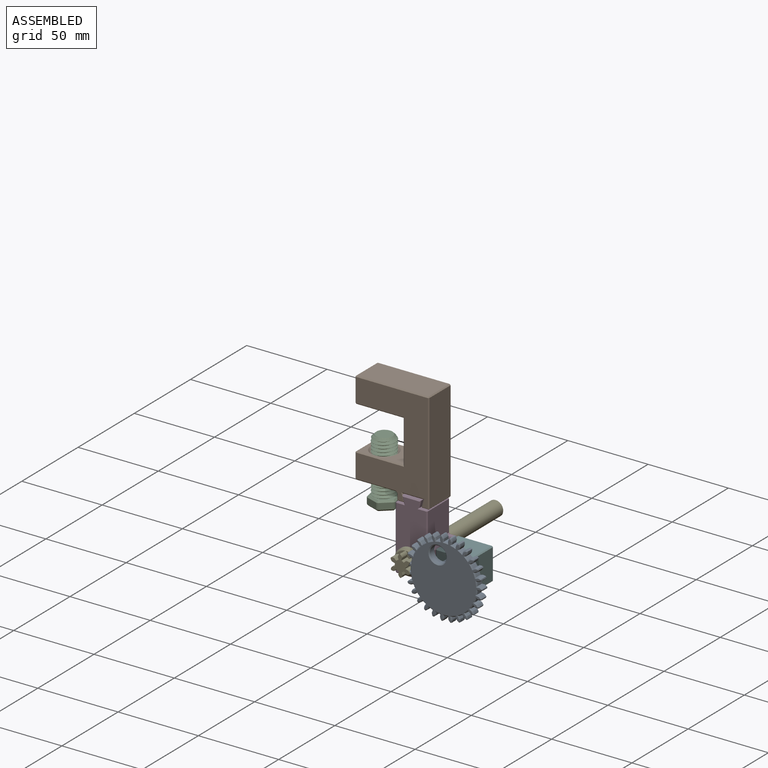
[diagram: assembled view]
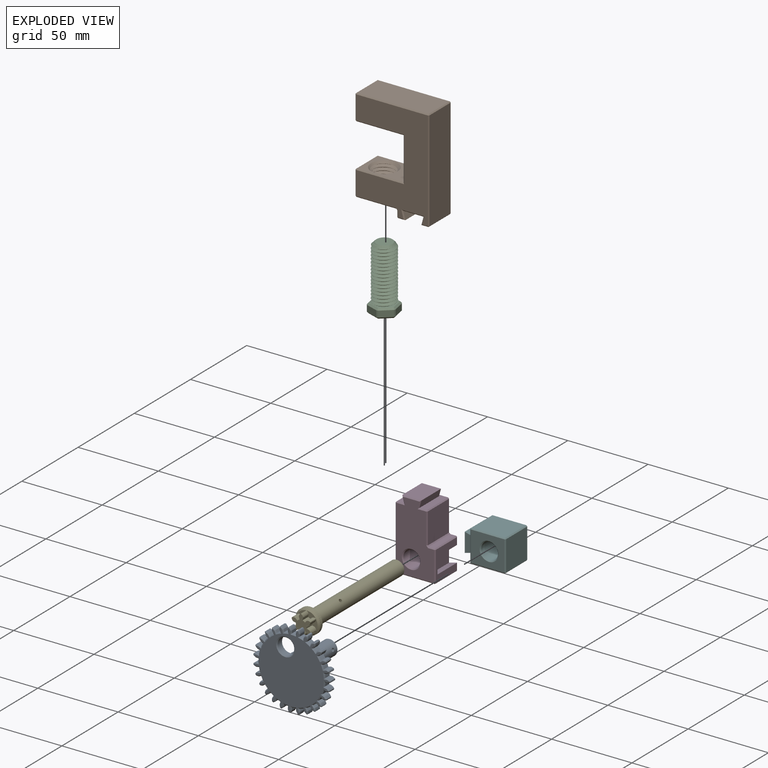
[diagram: exploded view]
GUIDED TOUR — MATED ASSEMBLY (Onshape document 58f9ea86d3237f107af40d6b, AutoMate assembly 58f9ea86d3237f107af40d6b_fdeb87faa406c52679d574de_d51cf69930491064aa4fa86d_default)

This assembly has 6 components, labeled P0..P5 below (a component is one placed occurrence of a part; the same part can appear more than once), held together by 5 mates. A mate is a constraint between two components; its type names the relative motion it leaves free:
  CYLINDRICAL — leaves both rotation about and translation along the listed axis free,
  SLIDER — leaves translation along the listed axis free.
Axis/direction vectors are unit vectors and 'through' points are millimeter coordinates, both in the assembly's world frame.

MATES
  1. SLIDER "Slider 1": P3 <-> P5, axis (0.000, 1.000, 0.000) through (12.40, -8.70, -34.99) mm
  2. CYLINDRICAL "Set Screw Mate": P2 <-> P1, axis (0.000, 0.000, 1.000) through (-24.65, 0.70, 24.96) mm
  3. SLIDER "Slider 2": P3 <-> P1, axis (0.000, 1.000, 0.000) through (0.00, 7.30, -2.40) mm
  4. CYLINDRICAL "Cylindrical 2": P4 <-> P3, axis (0.000, 1.000, 0.000) through (0.00, 64.46, -34.74) mm
  5. CYLINDRICAL "Cylindrical 1": P0 <-> P5, axis (0.000, 1.000, 0.000) through (26.74, 14.02, -34.99) mm

ASSEMBLY ORDER
  1. P3 — the base component [order heuristic]
  2. P1 — core [order heuristic]
  3. P4 — core [order heuristic]
  4. P0 — core [order heuristic]
  5. P2 — core [order heuristic]
  6. P5 [order verified]
Order-tag legend:
  [order verified] — this step's position reverses a verified removal order: the component was checked to insert without passing through the ones already placed.
  [order heuristic] — the first 5 components form the assembly's core: parts whose collision-free extraction could not be verified, listed in mate-graph order.

Of the 6 components, 4 carry the full construction recipe — the FeatureScript program that regenerates the part's solid from scratch; the rest are supplied as boundary geometry only.
Each toured component is shown spotlighted twice — in the assembled view, then in the exploded view, where a leader line traces a displaced component back to its assembled socket (saturated green if recipe-attached, orange if geometry-only; every other component desaturated gray) — followed by its recipe or geometry summary and the mates that hold it.
NOTE — this tour is split across 2 documents so each fits a 32k-token context. This is document 1: the component sections continue in the remaining 1 document, each repeating the header above.
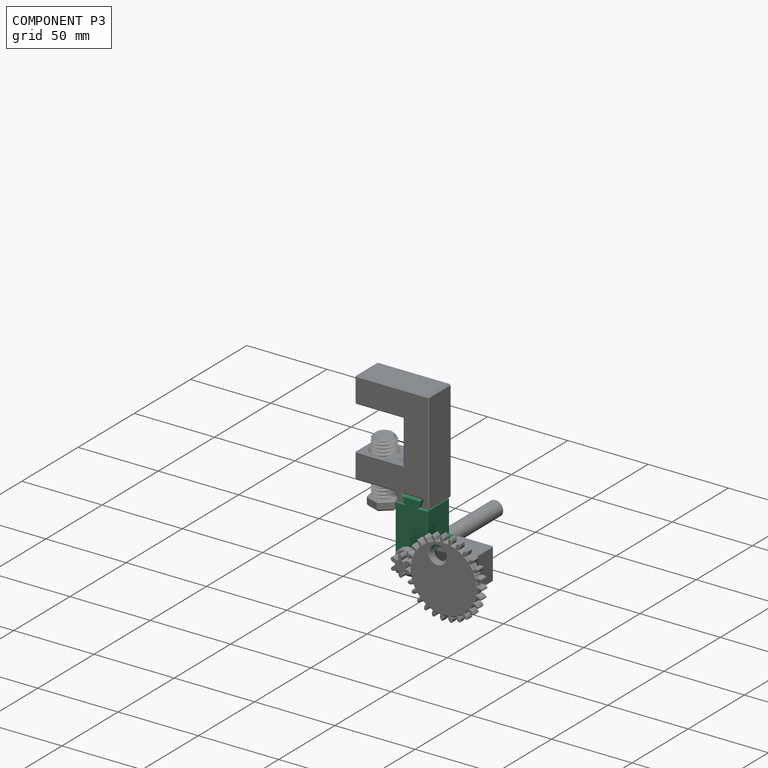
[diagram: component P3 — assembled]
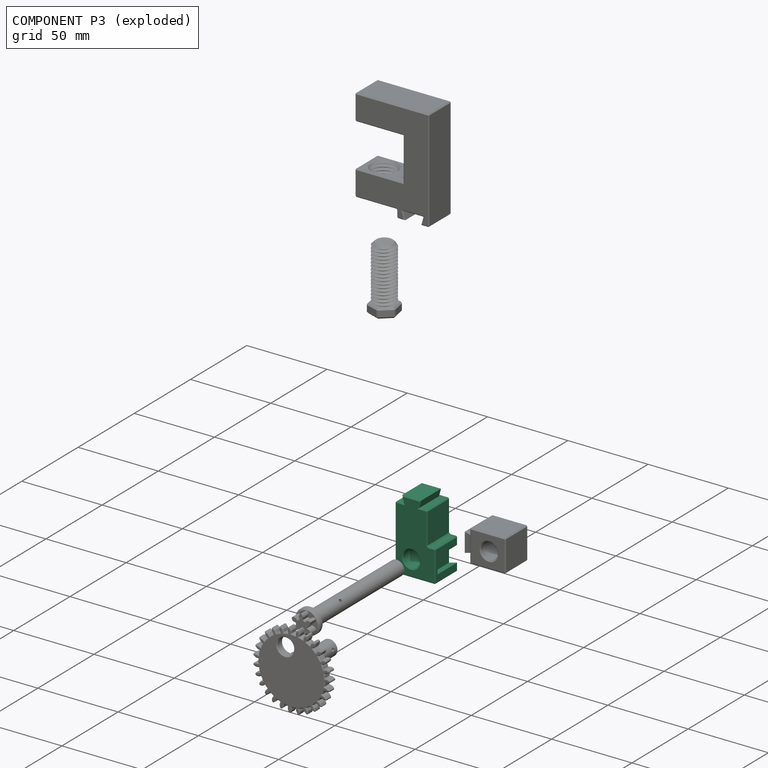
[diagram: component P3 — exploded]
COMPONENT P3 — recipe-attached (CADFS 00727181, mesh-verified: the recipe's output STEP matches this component's geometry to below the mesh-comparison resolution (tessellation chordal tolerance ~0.0825 mm)).
Held by: SLIDER mate "Slider 1" to P5; SLIDER mate "Slider 2" to P1; CYLINDRICAL mate "Cylindrical 2" to P4.
Construction recipe (FeatureScript — the CAD program that rebuilds this solid; sketch coordinates are in the units given by the * unit suffixes, e.g. mm):

FeatureScript 1511;
import(path : "onshape/std/geometry.fs", version : "1511.0");
import(path : "onshape/std/common.fs", version : "1511.0");
const mm = millimeter;
const VERTEX = EntityType.VERTEX;
const EDGE = EntityType.EDGE;
const FACE = EntityType.FACE;
const BODY = EntityType.BODY;
function v(x, y){return vector(x, y);}
function OD(order){return orderDisambiguation(order);}
function OSD(set){return originalSetDisambiguation(set);}
function TD(topology){return topologyDisambiguation(topology);}
function TDD(query){return trueDependencyDisambiguation(query);}
function sQuery(a, b, c) {return sketchEntityQuery(a, b, c);}

annotation { "Feature Type Name" : "Feature", "Feature Type Description" : "" }
export const myFeature = defineFeature(function(context is Context, id is Id, definition is map)
    precondition{}
    {
        {
            assignVariable(context, id + "F0", {"name" : "ClampThickness", "anyValue" : 20});
        }
        {
            assignVariable(context, id + "F1", {"name" : "DovetailBackstopDepth", "anyValue" : 2});
        }
        {
            var Q0;
            Q0=qCreatedBy(makeId("Top.planeOp"),FACE);
            var sketch = newSketch(context, id + "F2", { "sketchPlane" : qUnion([Q0])});
            skLineSegment(sketch, "E0", {"start": v(0, 40.25) * mm, "end": v(5.25, 40.25) * mm});
            skLineSegment(sketch, "E1", {"start": v(5.25, 40.25) * mm, "end": v(4.04, 44.75) * mm});
            skLineSegment(sketch, "E2", {"start": v(4.04, 44.75) * mm, "end": v(15.96, 44.75) * mm});
            skLineSegment(sketch, "E3", {"start": v(15.96, 44.75) * mm, "end": v(14.75, 40.25) * mm});
            skLineSegment(sketch, "E4", {"start": v(14.75, 40.25) * mm, "end": v(20, 40.25) * mm});
            skLineSegment(sketch, "E5", {"start": v(0, 40.25) * mm, "end": v(0, 0) * mm});
            skLineSegment(sketch, "E6", {"start": v(0, 0) * mm, "end": v(20, 0) * mm});
            skLineSegment(sketch, "E7", {"start": v(20, 0) * mm, "end": v(20, 40.25) * mm});
            skLineSegment(sketch, "E8", {"start": v(10, 0) * mm, "end": v(10, 44.75) * mm, "construction": true});
            skCircle(sketch, "E9", {"center": v(10, 10.25) * mm, "radius": 5.25 * mm});
            skLineSegment(sketch, "E10", {"start": v(5.25, 40.25) * mm, "end": v(14.75, 40.25) * mm});
            skLineSegment(sketch, "E11", {"start": v(0, 0) * mm, "end": v(-5, 0) * mm});
            skLineSegment(sketch, "E12", {"start": v(-5, 0) * mm, "end": v(-5, 20) * mm});
            skLineSegment(sketch, "E13", {"start": v(-5, 20) * mm, "end": v(0, 20) * mm});
            skLineSegment(sketch, "E14", {"start": v(-5, 15) * mm, "end": v(0, 16.34) * mm});
            skLineSegment(sketch, "E15", {"start": v(-5, 10) * mm, "end": v(0, 10) * mm, "construction": true});
            skLineSegment(sketch, "E16.MirrorCS", {"start": v(-5, 5) * mm, "end": v(0, 3.66) * mm});
            skSolve(sketch);
        }
        {
            var Q0;
            {var subQ3=sQuery(id+"F2.wireOp",EDGE,"E0");Q0=makeQuery(id+"F2.imprint","IMPRINT",FACE,{"disambiguationData":[TD([[makeQuery(id+"F2.imprint","IMPRINT",EDGE,{"derivedFrom":subQ3}),-1.0]])]});}
            var Q1;
            {var subQ0=sQuery(id+"F2.wireOp",EDGE,"E13");Q1=makeQuery(id+"F2.imprint","IMPRINT",FACE,{"disambiguationData":[TD([[makeQuery(id+"F2.imprint","IMPRINT",EDGE,{"derivedFrom":subQ0}),-1.0]])]});}
            var Q2;
            {var subQ0=sQuery(id+"F2.wireOp",EDGE,"E11");Q2=makeQuery(id+"F2.imprint","IMPRINT",FACE,{"disambiguationData":[TD([[makeQuery(id+"F2.imprint","IMPRINT",EDGE,{"derivedFrom":subQ0}),-1.0]])]});}
            extrude(context, id + "F3", {"entities" : qUnion([Q0, Q1, Q2]), "depth" : (getVariable(context, 'ClampThickness')) * mm});
        }
        {
            var Q0;
            {var subQ0=sQuery(id+"F2.wireOp",EDGE,"E14");Q0=makeQuery(id+"F2.imprint","IMPRINT",FACE,{"disambiguationData":[TD([[makeQuery(id+"F2.imprint","IMPRINT",EDGE,{"derivedFrom":subQ0}),-1.0]])]});}
            extrude(context, id + "F4", {"entities" : qUnion([Q0]), "operationType" : NewBodyOperationType.ADD, "depth" : (getVariable(context, 'DovetailBackstopDepth')) * mm});
        }
        {
            var Q0;
            Q0=makeQuery(id+"F2.imprint","IMPRINT",FACE,{"disambiguationData":[TD([[makeQuery(id+"F2.imprint","IMPRINT",EDGE,{"derivedFrom":sQuery(id+"F2.wireOp",EDGE,"E1")}),-1.0]])]});
            extrude(context, id + "F5", {"entities" : qUnion([Q0]), "operationType" : NewBodyOperationType.ADD, "depth" : (getVariable(context, 'ClampThickness') - getVariable(context, 'DovetailBackstopDepth')) * mm});
        }
        {
            var Q0;
            {var subQ0=sQuery(id+"F2.wireOp",EDGE,"E10");var subQ1=sQuery(id+"F2.wireOp",EDGE,"E16.MirrorCS");var subQ2=sQuery(id+"F2.wireOp",EDGE,"E14");var subQ3=sQuery(id+"F2.wireOp",EDGE,"E12");var subQ4=sQuery(id+"F2.wireOp",EDGE,"E5");Q0=makeQuery(id+"F5.boolean.opBoolean","MERGE",FACE,{"derivedFrom":[makeQuery(id+"F4.boolean.opBoolean","MERGE",FACE,{"derivedFrom":[makeQuery(id+"F3.opExtrude","CAP_FACE",FACE,{"disambiguationData":[OSD([sQuery(id+"F2.wireOp",EDGE,"E0"),sQuery(id+"F2.wireOp",EDGE,"E4"),subQ4,sQuery(id+"F2.wireOp",EDGE,"E6"),sQuery(id+"F2.wireOp",EDGE,"E7"),sQuery(id+"F2.wireOp",EDGE,"E9"),subQ0,sQuery(id+"F2.wireOp",EDGE,"E11"),subQ3,sQuery(id+"F2.wireOp",EDGE,"E13"),subQ2,subQ1])],"isStart":true}),makeQuery(id+"F4.opExtrude","CAP_FACE",FACE,{"disambiguationData":[OSD([subQ4,subQ3,subQ2,subQ1])],"isStart":true})]}),makeQuery(id+"F5.opExtrude","CAP_FACE",FACE,{"disambiguationData":[OSD([sQuery(id+"F2.wireOp",EDGE,"E1"),sQuery(id+"F2.wireOp",EDGE,"E2"),sQuery(id+"F2.wireOp",EDGE,"E3"),subQ0])],"isStart":true})]});}
            var Q1;
            Q1=makeQuery(id+"F3.opExtrude","CAP_FACE",FACE,{"disambiguationData":[OSD([sQuery(id+"F2.wireOp",EDGE,"E0"),sQuery(id+"F2.wireOp",EDGE,"E4"),sQuery(id+"F2.wireOp",EDGE,"E5"),sQuery(id+"F2.wireOp",EDGE,"E6"),sQuery(id+"F2.wireOp",EDGE,"E7"),sQuery(id+"F2.wireOp",EDGE,"E9"),sQuery(id+"F2.wireOp",EDGE,"E10"),sQuery(id+"F2.wireOp",EDGE,"E11"),sQuery(id+"F2.wireOp",EDGE,"E12"),sQuery(id+"F2.wireOp",EDGE,"E13"),sQuery(id+"F2.wireOp",EDGE,"E14"),sQuery(id+"F2.wireOp",EDGE,"E16.MirrorCS")])],"isStart":false});
            var Q2;
            Q2=makeQuery(id+"F3.opExtrude","SWEPT_FACE",FACE,{"disambiguationData":[OSD([sQuery(id+"F2.wireOp",EDGE,"E6"),sQuery(id+"F2.wireOp",EDGE,"E11")])]});
            var Q3;
            Q3=makeQuery(id+"F3.opExtrude","SWEPT_FACE",FACE,{"disambiguationData":[OSD([sQuery(id+"F2.wireOp",EDGE,"E7")])]});
            var Q4;
            Q4=makeQuery(id+"F3.opExtrude","SWEPT_FACE",FACE,{"disambiguationData":[OSD([sQuery(id+"F2.wireOp",EDGE,"E13")])]});
            var Q5;
            {var subQ0=sQuery(id+"F2.wireOp",EDGE,"E5");Q5=makeQuery(id+"F3.opExtrude","SWEPT_FACE",FACE,{"disambiguationData":[OSD([subQ0]),TDD([makeQuery(id+"F2.imprint","IMPRINT",EDGE,{"disambiguationData":[TD([[makeQuery(id+"F2.imprint","INTERSECT",VERTEX,{"derivedFrom":[sQuery(id+"F2.wireOp",EDGE,"E0"),subQ0]}),-1.0]])],"derivedFrom":subQ0})])]});}
            chamfer(context, id + "F6", {"entities" : qUnion([Q0, Q1, Q2, Q3, Q4, Q5]), "width" : 0.6 * mm, "tangentPropagation" : true});
        }
    });
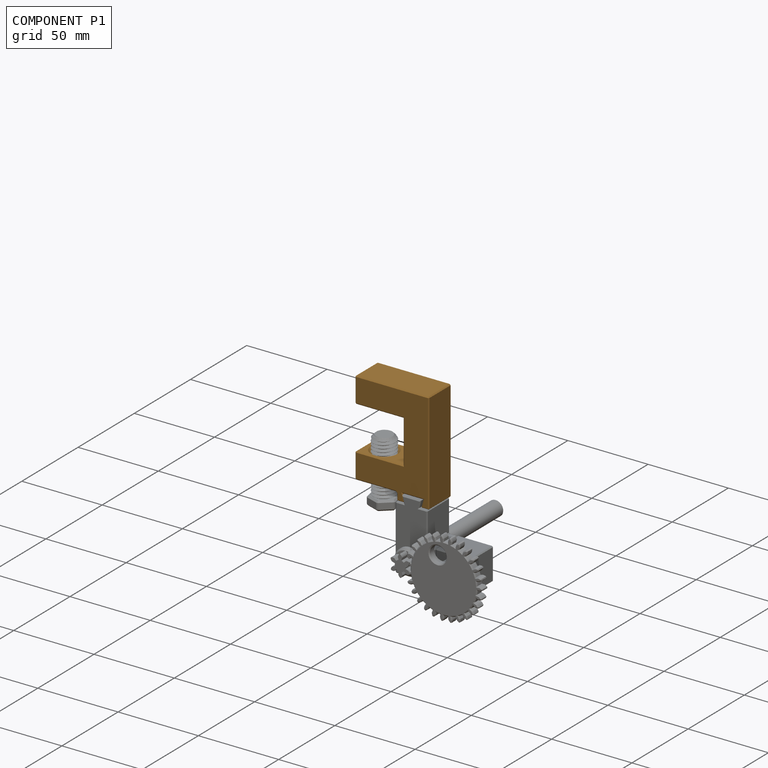
[diagram: component P1 — assembled]
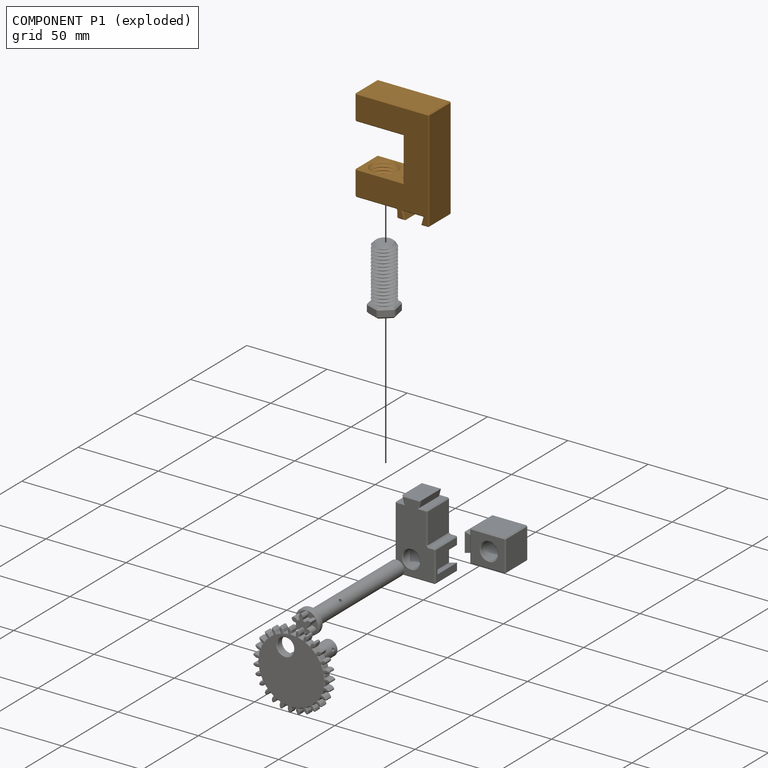
[diagram: component P1 — exploded]
COMPONENT P1 — geometry summary (no construction recipe available for this part):
  bounding box: 63.6 x 46.0 x 20.0 mm
  B-rep topology: 1 solid, 70 faces, 300 edges
  volume: 36163 mm^3 (62% of its bounding box)
Held by: CYLINDRICAL mate "Set Screw Mate" to P2; SLIDER mate "Slider 2" to P3.
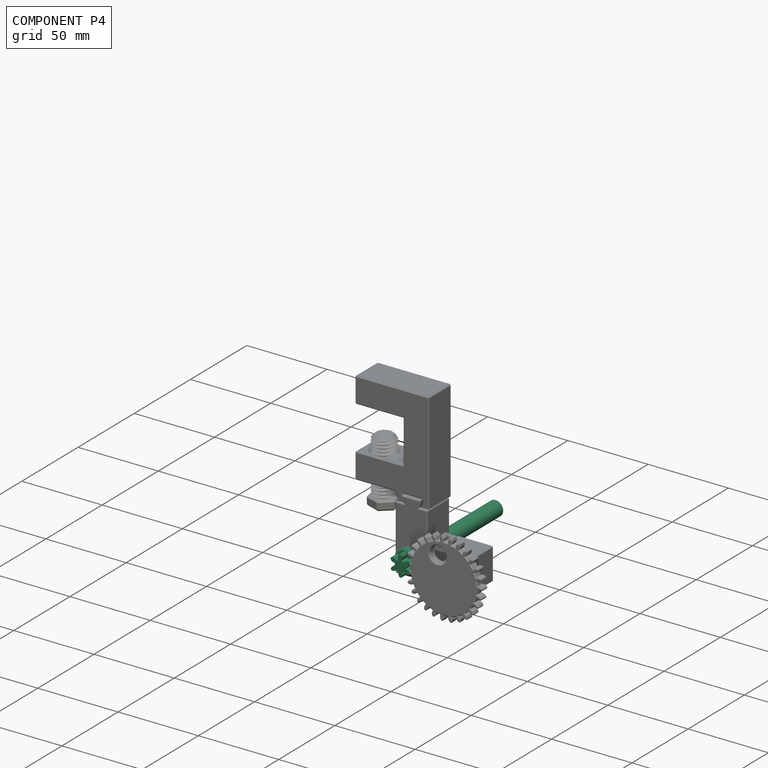
[diagram: component P4 — assembled]
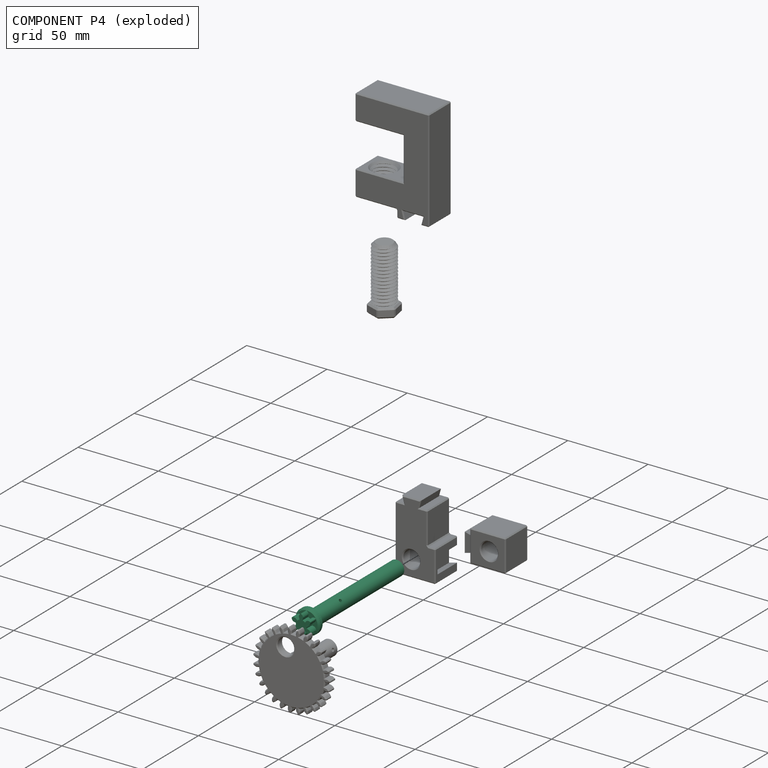
[diagram: component P4 — exploded]
COMPONENT P4 — recipe-attached (CADFS 00727183, mesh-verified: the recipe's output STEP matches this component's geometry to below the mesh-comparison resolution (tessellation chordal tolerance ~0.132 mm)).
Held by: CYLINDRICAL mate "Cylindrical 2" to P3.
Construction recipe (FeatureScript — the CAD program that rebuilds this solid; sketch coordinates are in the units given by the * unit suffixes, e.g. mm):

FeatureScript 1511;
import(path : "onshape/std/geometry.fs", version : "1511.0");
import(path : "onshape/std/common.fs", version : "1511.0");
const mm = millimeter;
const VERTEX = EntityType.VERTEX;
const EDGE = EntityType.EDGE;
const FACE = EntityType.FACE;
const BODY = EntityType.BODY;
function v(x, y){return vector(x, y);}
function OD(order){return orderDisambiguation(order);}
function OSD(set){return originalSetDisambiguation(set);}
function TD(topology){return topologyDisambiguation(topology);}
function TDD(query){return trueDependencyDisambiguation(query);}
function sQuery(a, b, c) {return sketchEntityQuery(a, b, c);}

annotation { "Feature Type Name" : "Feature", "Feature Type Description" : "" }
export const myFeature = defineFeature(function(context is Context, id is Id, definition is map)
    precondition{}
    {
        {
            assignVariable(context, id + "F0", {"name" : "PrintingOffset", "anyValue" : .3});
        }
        {
            assignVariable(context, id + "F1", {"name" : "ClampThickness", "anyValue" : 20});
        }
        {
            assignVariable(context, id + "F2", {"name" : "FilamentDiameter", "anyValue" : 1.75 + getVariable(context, 'PrintingOffset')});
        }
        {
            assignVariable(context, id + "F3", {"name" : "CollarThickness", "anyValue" : 2 * getVariable(context, 'FilamentDiameter')});
        }
        {
            assignVariable(context, id + "F4", {"name" : "ShaftLength", "anyValue" : 80});
        }
        {
            var Q0;
            Q0=qCreatedBy(makeId("Top.planeOp"),FACE);
            var sketch = newSketch(context, id + "F5", { "sketchPlane" : qUnion([Q0])});
            skCircle(sketch, "E0", {"center": v(0, 0) * mm, "radius": 5 * mm});
            skCircle(sketch, "E1", {"center": v(0, 0) * mm, "radius": 3.33 * mm});
            skCircle(sketch, "E2", {"center": v(0, 0) * mm, "radius": 6.67 * mm, "construction": true});
            skLineSegment(sketch, "E3", {"start": v(0, 0) * mm, "end": v(0, 7.61) * mm, "construction": true});
            skLineSegment(sketch, "E4", {"start": v(0, 0) * mm, "end": v(-4.4, 7.61) * mm, "construction": true});
            skLineSegment(sketch, "E5", {"start": v(-7.5, 5) * mm, "end": v(0, 5) * mm, "construction": true});
            skLineSegment(sketch, "E6", {"start": v(0, 5) * mm, "end": v(-7.5, 2.27) * mm, "construction": true});
            skLineSegment(sketch, "E7", {"start": v(0, 0) * mm, "end": v(-2.04, 7.61) * mm, "construction": true});
            skCircle(sketch, "E8", {"center": v(0, 5) * mm, "radius": 2.5 * mm, "construction": true});
            skCircle(sketch, "E9", {"center": v(0, 0) * mm, "radius": 4.7 * mm});
            skArc(sketch, "E10", {"start": v(0.1, 4.7) * mm, "mid": v(-0.52, 5.8) * mm, "end": v(-1.6, 6.47) * mm});
            skLineSegment(sketch, "E11", {"start": v(-1.6, 6.47) * mm, "end": v(-1.73, 6.44) * mm});
            skLineSegment(sketch, "E12", {"start": v(0, 5) * mm, "end": v(0, 3.33) * mm});
            skLineSegment(sketch, "E13.MirrorCS", {"start": v(-1.86, 6.4) * mm, "end": v(-1.73, 6.44) * mm});
            skArc(sketch, "E14.MirrorCS", {"start": v(-2.43, 4.02) * mm, "mid": v(-2.46, 5.29) * mm, "end": v(-1.86, 6.4) * mm});
            skLineSegment(sketch, "E15.MirrorCS", {"start": v(-2.5, 4.33) * mm, "end": v(-1.67, 2.89) * mm});
            skLineSegment(sketch, "E16.1.0", {"start": v(-4.33, 2.5) * mm, "end": v(-2.89, 1.67) * mm});
            skArc(sketch, "E16.1.1", {"start": v(-4.02, 2.43) * mm, "mid": v(-5.29, 2.46) * mm, "end": v(-6.4, 1.86) * mm});
            skArc(sketch, "E16.1.2", {"start": v(-4.7, -0.1) * mm, "mid": v(-5.8, 0.52) * mm, "end": v(-6.47, 1.6) * mm});
            skLineSegment(sketch, "E16.1.3", {"start": v(-6.47, 1.6) * mm, "end": v(-6.44, 1.73) * mm});
            skLineSegment(sketch, "E16.1.4", {"start": v(-6.4, 1.86) * mm, "end": v(-6.44, 1.73) * mm});
            skLineSegment(sketch, "E16.1.5", {"start": v(-5, 0) * mm, "end": v(-3.33, 0) * mm});
            skLineSegment(sketch, "E16.2.0", {"start": v(-4.33, -2.5) * mm, "end": v(-2.89, -1.67) * mm});
            skArc(sketch, "E16.2.1", {"start": v(-4.12, -2.26) * mm, "mid": v(-4.77, -3.35) * mm, "end": v(-4.8, -4.62) * mm});
            skArc(sketch, "E16.2.2", {"start": v(-2.26, -4.12) * mm, "mid": v(-3.35, -4.77) * mm, "end": v(-4.62, -4.8) * mm});
            skLineSegment(sketch, "E16.2.3", {"start": v(-4.62, -4.8) * mm, "end": v(-4.72, -4.72) * mm});
            skLineSegment(sketch, "E16.2.4", {"start": v(-4.8, -4.62) * mm, "end": v(-4.72, -4.72) * mm});
            skLineSegment(sketch, "E16.2.5", {"start": v(-2.5, -4.33) * mm, "end": v(-1.67, -2.89) * mm});
            skLineSegment(sketch, "E16.3.0", {"start": v(0, -5) * mm, "end": v(0, -3.33) * mm});
            skArc(sketch, "E16.3.1", {"start": v(-0.1, -4.7) * mm, "mid": v(0.52, -5.8) * mm, "end": v(1.6, -6.47) * mm});
            skArc(sketch, "E16.3.2", {"start": v(2.43, -4.02) * mm, "mid": v(2.46, -5.29) * mm, "end": v(1.86, -6.4) * mm});
            skLineSegment(sketch, "E16.3.3", {"start": v(1.86, -6.4) * mm, "end": v(1.73, -6.44) * mm});
            skLineSegment(sketch, "E16.3.4", {"start": v(1.6, -6.47) * mm, "end": v(1.73, -6.44) * mm});
            skLineSegment(sketch, "E16.3.5", {"start": v(2.5, -4.33) * mm, "end": v(1.67, -2.89) * mm});
            skLineSegment(sketch, "E16.4.0", {"start": v(4.33, -2.5) * mm, "end": v(2.89, -1.67) * mm});
            skArc(sketch, "E16.4.1", {"start": v(4.02, -2.43) * mm, "mid": v(5.29, -2.46) * mm, "end": v(6.4, -1.86) * mm});
            skArc(sketch, "E16.4.2", {"start": v(4.7, 0.1) * mm, "mid": v(5.8, -0.52) * mm, "end": v(6.47, -1.6) * mm});
            skLineSegment(sketch, "E16.4.3", {"start": v(6.47, -1.6) * mm, "end": v(6.44, -1.73) * mm});
            skLineSegment(sketch, "E16.4.4", {"start": v(6.4, -1.86) * mm, "end": v(6.44, -1.73) * mm});
            skLineSegment(sketch, "E16.4.5", {"start": v(5, 0) * mm, "end": v(3.33, 0) * mm});
            skLineSegment(sketch, "E16.5.0", {"start": v(4.33, 2.5) * mm, "end": v(2.89, 1.67) * mm});
            skArc(sketch, "E16.5.1", {"start": v(4.12, 2.26) * mm, "mid": v(4.77, 3.35) * mm, "end": v(4.8, 4.62) * mm});
            skArc(sketch, "E16.5.2", {"start": v(2.26, 4.12) * mm, "mid": v(3.35, 4.77) * mm, "end": v(4.62, 4.8) * mm});
            skLineSegment(sketch, "E16.5.3", {"start": v(4.62, 4.8) * mm, "end": v(4.72, 4.72) * mm});
            skLineSegment(sketch, "E16.5.4", {"start": v(4.8, 4.62) * mm, "end": v(4.72, 4.72) * mm});
            skLineSegment(sketch, "E16.5.5", {"start": v(2.5, 4.33) * mm, "end": v(1.67, 2.89) * mm});
            skSolve(sketch);
        }
        {
            var Q0;
            {var subQ0=sQuery(id+"F5.wireOp",EDGE,"E16.1.0");Q0=makeQuery(id+"F5.imprint","IMPRINT",FACE,{"disambiguationData":[TD([[makeQuery(id+"F5.imprint","IMPRINT",EDGE,{"derivedFrom":subQ0}),-1.0]])]});}
            var Q1;
            {var subQ1=sQuery(id+"F5.wireOp",EDGE,"E11");Q1=makeQuery(id+"F5.imprint","IMPRINT",FACE,{"disambiguationData":[TD([[makeQuery(id+"F5.imprint","IMPRINT",EDGE,{"derivedFrom":subQ1}),1.0]])]});}
            var Q2;
            {var subQ0=sQuery(id+"F5.wireOp",EDGE,"E1");var subQ3=makeQuery(id+"F5.imprint","INTERSECT",VERTEX,{"derivedFrom":[subQ0,sQuery(id+"F5.wireOp",EDGE,"E16.4.5")]});Q2=makeQuery(id+"F5.imprint","IMPRINT",FACE,{"disambiguationData":[TD([[makeQuery(id+"F5.imprint","IMPRINT",EDGE,{"disambiguationData":[TD([[subQ3,-1.0]])],"derivedFrom":subQ0}),1.0]])]});}
            var Q3;
            {var subQ4=sQuery(id+"F5.wireOp",EDGE,"E16.5.0");Q3=makeQuery(id+"F5.imprint","IMPRINT",FACE,{"disambiguationData":[TD([[makeQuery(id+"F5.imprint","IMPRINT",EDGE,{"derivedFrom":subQ4}),-1.0]])]});}
            var Q4;
            {var subQ4=sQuery(id+"F5.wireOp",EDGE,"E16.4.0");Q4=makeQuery(id+"F5.imprint","IMPRINT",FACE,{"disambiguationData":[TD([[makeQuery(id+"F5.imprint","IMPRINT",EDGE,{"derivedFrom":subQ4}),-1.0]])]});}
            var Q5;
            {var subQ4=sQuery(id+"F5.wireOp",EDGE,"E16.3.0");Q5=makeQuery(id+"F5.imprint","IMPRINT",FACE,{"disambiguationData":[TD([[makeQuery(id+"F5.imprint","IMPRINT",EDGE,{"derivedFrom":subQ4}),-1.0]])]});}
            var Q6;
            {var subQ4=sQuery(id+"F5.wireOp",EDGE,"E16.2.0");Q6=makeQuery(id+"F5.imprint","IMPRINT",FACE,{"disambiguationData":[TD([[makeQuery(id+"F5.imprint","IMPRINT",EDGE,{"derivedFrom":subQ4}),-1.0]])]});}
            var Q7;
            {var subQ0=sQuery(id+"F5.wireOp",EDGE,"E12");Q7=makeQuery(id+"F5.imprint","IMPRINT",FACE,{"disambiguationData":[TD([[makeQuery(id+"F5.imprint","IMPRINT",EDGE,{"derivedFrom":subQ0}),-1.0]])]});}
            var Q8;
            {var subQ0=sQuery(id+"F5.wireOp",EDGE,"E16.1.3");Q8=makeQuery(id+"F5.imprint","IMPRINT",FACE,{"disambiguationData":[TD([[makeQuery(id+"F5.imprint","IMPRINT",EDGE,{"derivedFrom":subQ0}),-1.0]])]});}
            var Q9;
            {var subQ0=sQuery(id+"F5.wireOp",EDGE,"E16.2.3");Q9=makeQuery(id+"F5.imprint","IMPRINT",FACE,{"disambiguationData":[TD([[makeQuery(id+"F5.imprint","IMPRINT",EDGE,{"derivedFrom":subQ0}),-1.0]])]});}
            var Q10;
            {var subQ0=sQuery(id+"F5.wireOp",EDGE,"E16.3.3");Q10=makeQuery(id+"F5.imprint","IMPRINT",FACE,{"disambiguationData":[TD([[makeQuery(id+"F5.imprint","IMPRINT",EDGE,{"derivedFrom":subQ0}),-1.0]])]});}
            var Q11;
            {var subQ0=sQuery(id+"F5.wireOp",EDGE,"E16.4.3");Q11=makeQuery(id+"F5.imprint","IMPRINT",FACE,{"disambiguationData":[TD([[makeQuery(id+"F5.imprint","IMPRINT",EDGE,{"derivedFrom":subQ0}),-1.0]])]});}
            var Q12;
            {var subQ0=sQuery(id+"F5.wireOp",EDGE,"E16.5.3");Q12=makeQuery(id+"F5.imprint","IMPRINT",FACE,{"disambiguationData":[TD([[makeQuery(id+"F5.imprint","IMPRINT",EDGE,{"derivedFrom":subQ0}),-1.0]])]});}
            extrude(context, id + "F6", {"entities" : qUnion([Q0, Q1, Q2, Q3, Q4, Q5, Q6, Q7, Q8, Q9, Q10, Q11, Q12]), "depth" : 5 * mm});
        }
        {
            var Q0;
            {var subQ0=sQuery(id+"F5.wireOp",EDGE,"E1");var subQ8=makeQuery(id+"F5.imprint","INTERSECT",VERTEX,{"derivedFrom":[subQ0,sQuery(id+"F5.wireOp",EDGE,"E16.4.5")]});Q0=makeQuery(id+"F5.imprint","IMPRINT",FACE,{"disambiguationData":[TD([[makeQuery(id+"F5.imprint","IMPRINT",EDGE,{"disambiguationData":[TD([[subQ8,-1.0]])],"derivedFrom":subQ0}),1.0]])]});}
            var Q1;
            {var subQ5=sQuery(id+"F5.wireOp",EDGE,"E1");var subQ7=sQuery(id+"F5.wireOp",EDGE,"E16.1.5");var subQ9=makeQuery(id+"F5.imprint","INTERSECT",VERTEX,{"derivedFrom":[subQ5,subQ7]});Q1=makeQuery(id+"F5.imprint","IMPRINT",FACE,{"disambiguationData":[TD([[makeQuery(id+"F5.imprint","IMPRINT",EDGE,{"disambiguationData":[TD([[subQ9,-1.0]])],"derivedFrom":subQ5}),-1.0]])]});}
            var Q2;
            {var subQ0=sQuery(id+"F5.wireOp",EDGE,"E16.1.0");var subQ1=sQuery(id+"F5.wireOp",EDGE,"E1");var subQ2=makeQuery(id+"F5.imprint","INTERSECT",VERTEX,{"derivedFrom":[subQ1,subQ0]});Q2=makeQuery(id+"F5.imprint","IMPRINT",FACE,{"disambiguationData":[TD([[makeQuery(id+"F5.imprint","IMPRINT",EDGE,{"disambiguationData":[TD([[subQ2,-1.0]])],"derivedFrom":subQ1}),-1.0]])]});}
            var Q3;
            {var subQ5=sQuery(id+"F5.wireOp",EDGE,"E15.MirrorCS");var subQ7=sQuery(id+"F5.wireOp",EDGE,"E1");var subQ9=makeQuery(id+"F5.imprint","INTERSECT",VERTEX,{"derivedFrom":[subQ7,subQ5]});Q3=makeQuery(id+"F5.imprint","IMPRINT",FACE,{"disambiguationData":[TD([[makeQuery(id+"F5.imprint","IMPRINT",EDGE,{"disambiguationData":[TD([[subQ9,-1.0]])],"derivedFrom":subQ7}),-1.0]])]});}
            var Q4;
            {var subQ0=sQuery(id+"F5.wireOp",EDGE,"E12");var subQ1=sQuery(id+"F5.wireOp",EDGE,"E1");var subQ2=makeQuery(id+"F5.imprint","INTERSECT",VERTEX,{"derivedFrom":[subQ1,subQ0]});Q4=makeQuery(id+"F5.imprint","IMPRINT",FACE,{"disambiguationData":[TD([[makeQuery(id+"F5.imprint","IMPRINT",EDGE,{"disambiguationData":[TD([[subQ2,-1.0]])],"derivedFrom":subQ1}),-1.0]])]});}
            var Q5;
            {var subQ2=sQuery(id+"F5.wireOp",EDGE,"E12");var subQ7=sQuery(id+"F5.wireOp",EDGE,"E1");var subQ8=makeQuery(id+"F5.imprint","INTERSECT",VERTEX,{"derivedFrom":[subQ7,subQ2]});Q5=makeQuery(id+"F5.imprint","IMPRINT",FACE,{"disambiguationData":[TD([[makeQuery(id+"F5.imprint","IMPRINT",EDGE,{"disambiguationData":[TD([[subQ8,1.0]])],"derivedFrom":subQ7}),-1.0]])]});}
            var Q6;
            {var subQ0=sQuery(id+"F5.wireOp",EDGE,"E16.5.0");var subQ1=sQuery(id+"F5.wireOp",EDGE,"E1");var subQ2=makeQuery(id+"F5.imprint","INTERSECT",VERTEX,{"derivedFrom":[subQ1,subQ0]});Q6=makeQuery(id+"F5.imprint","IMPRINT",FACE,{"disambiguationData":[TD([[makeQuery(id+"F5.imprint","IMPRINT",EDGE,{"disambiguationData":[TD([[subQ2,-1.0]])],"derivedFrom":subQ1}),-1.0]])]});}
            var Q7;
            {var subQ5=sQuery(id+"F5.wireOp",EDGE,"E16.4.5");var subQ7=sQuery(id+"F5.wireOp",EDGE,"E1");var subQ8=makeQuery(id+"F5.imprint","INTERSECT",VERTEX,{"derivedFrom":[subQ7,subQ5]});Q7=makeQuery(id+"F5.imprint","IMPRINT",FACE,{"disambiguationData":[TD([[makeQuery(id+"F5.imprint","IMPRINT",EDGE,{"disambiguationData":[TD([[subQ8,-1.0]])],"derivedFrom":subQ7}),-1.0]])]});}
            var Q8;
            {var subQ0=sQuery(id+"F5.wireOp",EDGE,"E16.4.0");var subQ1=sQuery(id+"F5.wireOp",EDGE,"E1");var subQ2=makeQuery(id+"F5.imprint","INTERSECT",VERTEX,{"derivedFrom":[subQ1,subQ0]});Q8=makeQuery(id+"F5.imprint","IMPRINT",FACE,{"disambiguationData":[TD([[makeQuery(id+"F5.imprint","IMPRINT",EDGE,{"disambiguationData":[TD([[subQ2,-1.0]])],"derivedFrom":subQ1}),-1.0]])]});}
            var Q9;
            {var subQ5=sQuery(id+"F5.wireOp",EDGE,"E16.3.5");var subQ7=sQuery(id+"F5.wireOp",EDGE,"E1");var subQ8=makeQuery(id+"F5.imprint","INTERSECT",VERTEX,{"derivedFrom":[subQ7,subQ5]});Q9=makeQuery(id+"F5.imprint","IMPRINT",FACE,{"disambiguationData":[TD([[makeQuery(id+"F5.imprint","IMPRINT",EDGE,{"disambiguationData":[TD([[subQ8,-1.0]])],"derivedFrom":subQ7}),-1.0]])]});}
            var Q10;
            {var subQ0=sQuery(id+"F5.wireOp",EDGE,"E16.3.0");var subQ1=sQuery(id+"F5.wireOp",EDGE,"E1");var subQ2=makeQuery(id+"F5.imprint","INTERSECT",VERTEX,{"derivedFrom":[subQ1,subQ0]});Q10=makeQuery(id+"F5.imprint","IMPRINT",FACE,{"disambiguationData":[TD([[makeQuery(id+"F5.imprint","IMPRINT",EDGE,{"disambiguationData":[TD([[subQ2,-1.0]])],"derivedFrom":subQ1}),-1.0]])]});}
            var Q11;
            {var subQ5=sQuery(id+"F5.wireOp",EDGE,"E1");var subQ7=sQuery(id+"F5.wireOp",EDGE,"E16.2.5");var subQ9=makeQuery(id+"F5.imprint","INTERSECT",VERTEX,{"derivedFrom":[subQ5,subQ7]});Q11=makeQuery(id+"F5.imprint","IMPRINT",FACE,{"disambiguationData":[TD([[makeQuery(id+"F5.imprint","IMPRINT",EDGE,{"disambiguationData":[TD([[subQ9,-1.0]])],"derivedFrom":subQ5}),-1.0]])]});}
            var Q12;
            {var subQ0=sQuery(id+"F5.wireOp",EDGE,"E16.2.0");var subQ1=sQuery(id+"F5.wireOp",EDGE,"E1");var subQ2=makeQuery(id+"F5.imprint","INTERSECT",VERTEX,{"derivedFrom":[subQ1,subQ0]});Q12=makeQuery(id+"F5.imprint","IMPRINT",FACE,{"disambiguationData":[TD([[makeQuery(id+"F5.imprint","IMPRINT",EDGE,{"disambiguationData":[TD([[subQ2,-1.0]])],"derivedFrom":subQ1}),-1.0]])]});}
            extrude(context, id + "F7", {"entities" : qUnion([Q0, Q1, Q2, Q3, Q4, Q5, Q6, Q7, Q8, Q9, Q10, Q11, Q12]), "operationType" : NewBodyOperationType.ADD, "oppositeDirection" : true, "depth" : (getVariable(context, 'ShaftLength')) * mm});
        }
        {
            var Q0;
            Q0=makeQuery(id+"F7.opExtrude","CAP_FACE",FACE,{"disambiguationData":[OSD([sQuery(id+"F5.wireOp",EDGE,"E9")])],"isStart":false});
            var sketch = newSketch(context, id + "F8", { "sketchPlane" : qUnion([Q0])});
            skLineSegment(sketch, "E17", {"start": v(0, 4.7) * mm, "end": v(0, -4.7) * mm, "construction": true});
            skLineSegment(sketch, "E18", {"start": v(-0.3, 4.69) * mm, "end": v(-0.3, -4.69) * mm});
            skLineSegment(sketch, "E19.MirrorCS", {"start": v(0.3, 4.69) * mm, "end": v(0.3, -4.69) * mm});
            skCircle(sketch, "E20.0", {"center": v(0, 0) * mm, "radius": 4.7 * mm});
            skCircle(sketch, "E21.0", {"center": v(0, 0) * mm, "radius": 7.7 * mm});
            skSolve(sketch);
        }
        {
            var Q0;
            Q0=makeQuery(id+"F8.imprint","IMPRINT",FACE,{"disambiguationData":[TD([[makeQuery(id+"F8.imprint","IMPRINT",EDGE,{"derivedFrom":sQuery(id+"F8.wireOp",EDGE,"E21.0")}),1.0]])]});
            extrude(context, id + "F9", {"entities" : qUnion([Q0]), "operationType" : NewBodyOperationType.ADD, "oppositeDirection" : true, "depth" : (getVariable(context, 'ShaftLength')) * mm, "hasSecondDirection" : true, "secondDirectionOppositeDirection" : true, "secondDirectionDepth" : (getVariable(context, 'ShaftLength') - getVariable(context, 'CollarThickness')) * mm});
        }
        {
            var Q0;
            Q0=makeQuery(id+"F9.opExtrude","CAP_EDGE",EDGE,{"disambiguationData":[OSD([sQuery(id+"F8.wireOp",EDGE,"39c6af55-2d96-489b-a5a8-3c761cad1f90.0")])],"isStart":false});
            var Q1;
            Q1=makeQuery(id+"F9.opExtrude","CAP_EDGE",EDGE,{"disambiguationData":[OSD([sQuery(id+"F8.wireOp",EDGE,"39c6af55-2d96-489b-a5a8-3c761cad1f90.0")])],"isStart":true});
            var Q2;
            Q2=makeQuery(id+"F9.opExtrude","CAP_EDGE",EDGE,{"disambiguationData":[OSD([sQuery(id+"F8.wireOp",EDGE,"E21.0")])],"isStart":false});
            var Q3;
            Q3=makeQuery(id+"F9.opExtrude","CAP_EDGE",EDGE,{"disambiguationData":[OSD([sQuery(id+"F8.wireOp",EDGE,"E21.0")])],"isStart":true});
            chamfer(context, id + "F10", {"entities" : qUnion([Q0, Q1, Q2, Q3]), "width" : 1 * mm, "tangentPropagation" : true});
        }
        {
            var Q0;
            {var subQ0=sQuery(id+"F8.wireOp",EDGE,"E18");Q0=makeQuery(id+"F8.imprint","IMPRINT",FACE,{"disambiguationData":[TD([[makeQuery(id+"F8.imprint","IMPRINT",EDGE,{"derivedFrom":subQ0}),1.0]])]});}
            extrude(context, id + "F11", {"entities" : qUnion([Q0]), "operationType" : NewBodyOperationType.REMOVE, "oppositeDirection" : true, "depth" : (getVariable(context, 'ShaftLength') - getVariable(context, 'ClampThickness') - getVariable(context, 'CollarThickness')) * mm});
        }
        {
            var Q0;
            Q0=qCreatedBy(makeId("Right.planeOp"),FACE);
            var sketch = newSketch(context, id + "F12", { "sketchPlane" : qUnion([Q0])});
            skLineSegment(sketch, "E22", {"start": v(0, -80) * mm, "end": v(0, 0) * mm, "construction": true});
            skPoint(sketch, "E23", {"position": v(0, -24.1) * mm});
            skCircle(sketch, "E24", {"center": v(0, -25.43) * mm, "radius": 1.02 * mm});
            skLineSegment(sketch, "E25.0", {"start": v(-4.69, -80) * mm, "end": v(4.69, -80) * mm});
            skSolve(sketch);
        }
        {
            var Q0;
            Q0=makeQuery(id+"F12.imprint","IMPRINT",FACE,{"disambiguationData":[TD([[makeQuery(id+"F12.imprint","IMPRINT",EDGE,{"derivedFrom":sQuery(id+"F12.wireOp",EDGE,"E24")}),1.0]])]});
            extrude(context, id + "F13", {"entities" : qUnion([Q0]), "operationType" : NewBodyOperationType.REMOVE, "endBound" : BoundingType.THROUGH_ALL, "depth" : 25 * mm, "hasSecondDirection" : true, "secondDirectionBound" : SecondDirectionBoundingType.THROUGH_ALL, "secondDirectionOppositeDirection" : true, "secondDirectionDepth" : 25 * mm});
        }
    });
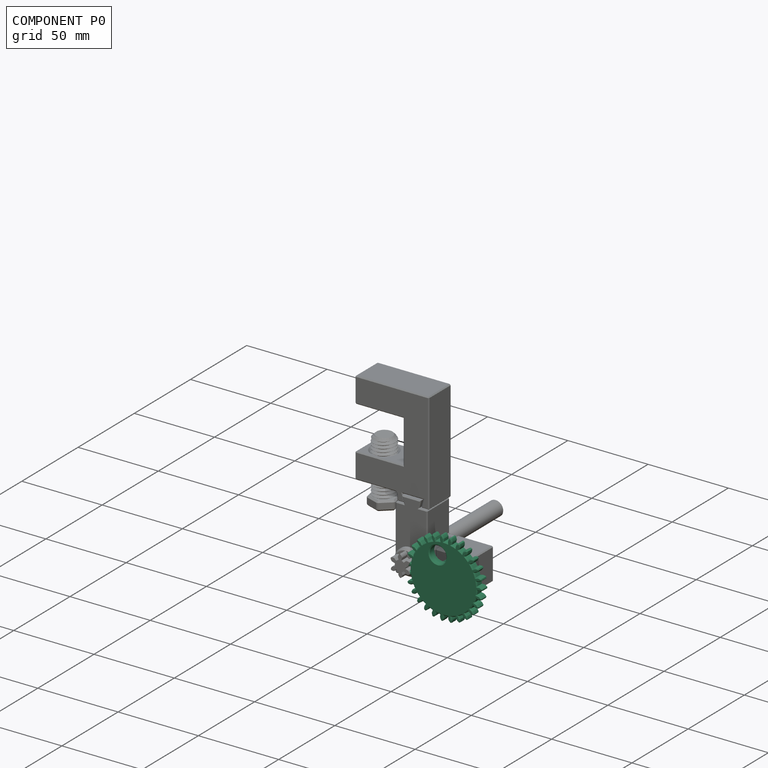
[diagram: component P0 — assembled]
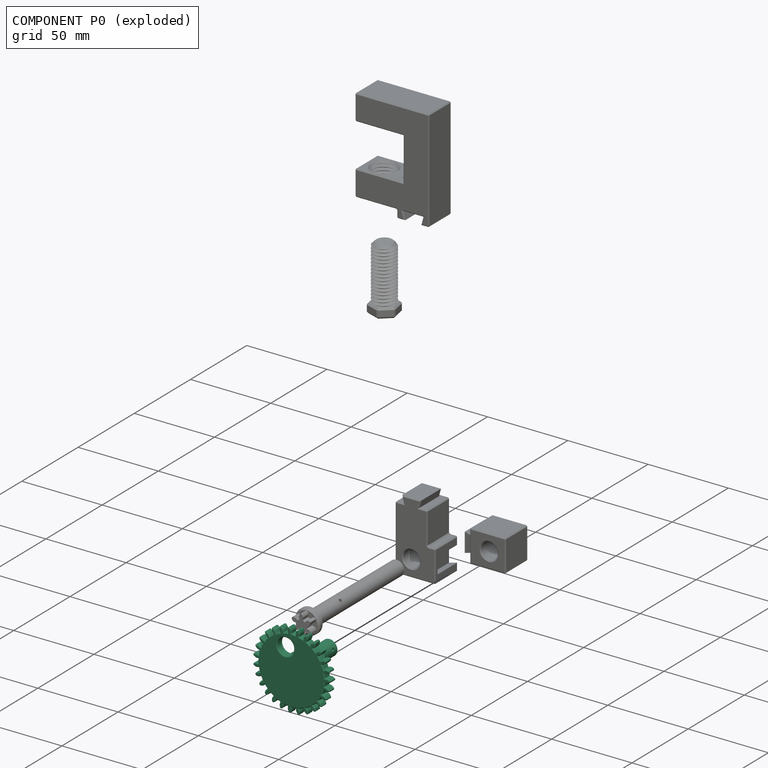
[diagram: component P0 — exploded]
COMPONENT P0 — recipe-attached (CADFS 00727184, mesh-verified: the recipe's output STEP matches this component's geometry to below the mesh-comparison resolution (tessellation chordal tolerance ~0.114 mm)).
Held by: CYLINDRICAL mate "Cylindrical 1" to P5.
Construction recipe (FeatureScript — the CAD program that rebuilds this solid; sketch coordinates are in the units given by the * unit suffixes, e.g. mm):

FeatureScript 1511;
import(path : "onshape/std/geometry.fs", version : "1511.0");
import(path : "onshape/std/common.fs", version : "1511.0");
const mm = millimeter;
const VERTEX = EntityType.VERTEX;
const EDGE = EntityType.EDGE;
const FACE = EntityType.FACE;
const BODY = EntityType.BODY;
function v(x, y){return vector(x, y);}
function OD(order){return orderDisambiguation(order);}
function OSD(set){return originalSetDisambiguation(set);}
function TD(topology){return topologyDisambiguation(topology);}
function TDD(query){return trueDependencyDisambiguation(query);}
function sQuery(a, b, c) {return sketchEntityQuery(a, b, c);}

annotation { "Feature Type Name" : "Feature", "Feature Type Description" : "" }
export const myFeature = defineFeature(function(context is Context, id is Id, definition is map)
    precondition{}
    {
        {
            assignVariable(context, id + "F0", {"name" : "PrintingOffset", "anyValue" : 0.3});
        }
        {
            assignVariable(context, id + "F1", {"name" : "ClampThickness", "anyValue" : 20});
        }
        {
            assignVariable(context, id + "F2", {"name" : "FilamentDiameter", "anyValue" : 1.75 + getVariable(context, 'PrintingOffset')});
        }
        {
            assignVariable(context, id + "F3", {"name" : "CollarThickness", "anyValue" : 2 * getVariable(context, 'FilamentDiameter')});
        }
        {
            assignVariable(context, id + "F4", {"name" : "GearThickness", "anyValue" : 5});
        }
        {
            var Q0;
            Q0=qCreatedBy(makeId("Top.planeOp"),FACE);
            var sketch = newSketch(context, id + "F5", { "sketchPlane" : qUnion([Q0])});
            skCircle(sketch, "E0", {"center": v(0, 0) * mm, "radius": 22.5 * mm, "construction": true});
            skCircle(sketch, "E1", {"center": v(0, 0) * mm, "radius": 20.83 * mm});
            skCircle(sketch, "E2", {"center": v(0, 0) * mm, "radius": 24.17 * mm, "construction": true});
            skLineSegment(sketch, "E3", {"start": v(0, 0) * mm, "end": v(0, 28.6) * mm, "construction": true});
            skLineSegment(sketch, "E4", {"start": v(0, 0) * mm, "end": v(-3.34, 28.6) * mm, "construction": true});
            skLineSegment(sketch, "E5", {"start": v(-15.46, 22.5) * mm, "end": v(0, 22.5) * mm, "construction": true});
            skLineSegment(sketch, "E6", {"start": v(0, 22.5) * mm, "end": v(-15.46, 16.87) * mm, "construction": true});
            skLineSegment(sketch, "E7", {"start": v(0, 0) * mm, "end": v(-1.67, 28.6) * mm, "construction": true});
            skCircle(sketch, "E8", {"center": v(0, 22.5) * mm, "radius": 5.62 * mm, "construction": true});
            skCircle(sketch, "E9", {"center": v(0, 0) * mm, "radius": 21.14 * mm, "construction": true});
            skArc(sketch, "E10", {"start": v(0, 22.5) * mm, "mid": v(-0.42, 23.37) * mm, "end": v(-0.98, 24.15) * mm});
            skArc(sketch, "E11.trimOffspring", {"start": v(0.36, 20.83) * mm, "mid": v(0.35, 20.99) * mm, "end": v(0.34, 21.14) * mm});
            skArc(sketch, "E12.trimOffspring", {"start": v(-0.98, 16.82) * mm, "mid": v(-0.93, 16.88) * mm, "end": v(-0.88, 16.94) * mm});
            skLineSegment(sketch, "E13", {"start": v(0, 22.5) * mm, "end": v(0, 20.83) * mm});
            skLineSegment(sketch, "E14", {"start": v(-0.98, 24.15) * mm, "end": v(-1.4, 24.13) * mm});
            skLineSegment(sketch, "E15.MirrorCS", {"start": v(-1.83, 24.1) * mm, "end": v(-1.4, 24.13) * mm});
            skArc(sketch, "E16.MirrorCS", {"start": v(-2.61, 22.35) * mm, "mid": v(-2.3, 23.26) * mm, "end": v(-1.83, 24.1) * mm});
            skLineSegment(sketch, "E17.MirrorCS", {"start": v(-2.61, 22.35) * mm, "end": v(-2.42, 20.7) * mm});
            skLineSegment(sketch, "E18.1.0", {"start": v(-5.19, 21.9) * mm, "end": v(-4.8, 20.27) * mm});
            skArc(sketch, "E18.1.1", {"start": v(-5.19, 21.9) * mm, "mid": v(-5.8, 22.64) * mm, "end": v(-6.53, 23.27) * mm});
            skLineSegment(sketch, "E18.1.2", {"start": v(-6.53, 23.27) * mm, "end": v(-6.93, 23.15) * mm});
            skLineSegment(sketch, "E18.1.3", {"start": v(-7.33, 23.03) * mm, "end": v(-6.93, 23.15) * mm});
            skArc(sketch, "E18.1.4", {"start": v(-7.7, 21.14) * mm, "mid": v(-7.6, 22.1) * mm, "end": v(-7.33, 23.03) * mm});
            skLineSegment(sketch, "E18.1.5", {"start": v(-7.7, 21.14) * mm, "end": v(-7.13, 19.58) * mm});
            skLineSegment(sketch, "E18.2.0", {"start": v(-10.1, 20.1) * mm, "end": v(-9.35, 18.62) * mm});
            skArc(sketch, "E18.2.1", {"start": v(-10.1, 20.1) * mm, "mid": v(-10.86, 20.7) * mm, "end": v(-11.72, 21.14) * mm});
            skLineSegment(sketch, "E18.2.2", {"start": v(-11.72, 21.14) * mm, "end": v(-12.09, 20.93) * mm});
            skLineSegment(sketch, "E18.2.3", {"start": v(-12.45, 20.71) * mm, "end": v(-12.09, 20.93) * mm});
            skArc(sketch, "E18.2.4", {"start": v(-12.36, 18.8) * mm, "mid": v(-12.49, 19.75) * mm, "end": v(-12.45, 20.71) * mm});
            skLineSegment(sketch, "E18.2.5", {"start": v(-12.36, 18.8) * mm, "end": v(-11.45, 17.4) * mm});
            skLineSegment(sketch, "E18.3.0", {"start": v(-14.46, 17.24) * mm, "end": v(-13.4, 15.96) * mm});
            skArc(sketch, "E18.3.1", {"start": v(-14.46, 17.24) * mm, "mid": v(-15.34, 17.63) * mm, "end": v(-16.27, 17.87) * mm});
            skLineSegment(sketch, "E18.3.2", {"start": v(-16.27, 17.87) * mm, "end": v(-16.59, 17.58) * mm});
            skLineSegment(sketch, "E18.3.3", {"start": v(-16.89, 17.29) * mm, "end": v(-16.59, 17.58) * mm});
            skArc(sketch, "E18.3.4", {"start": v(-16.37, 15.44) * mm, "mid": v(-16.7, 16.34) * mm, "end": v(-16.89, 17.29) * mm});
            skLineSegment(sketch, "E18.3.5", {"start": v(-16.37, 15.44) * mm, "end": v(-15.15, 14.3) * mm});
            skLineSegment(sketch, "E18.4.0", {"start": v(-18.05, 13.44) * mm, "end": v(-16.71, 12.44) * mm});
            skArc(sketch, "E18.4.1", {"start": v(-18.05, 13.44) * mm, "mid": v(-19, 13.62) * mm, "end": v(-19.96, 13.63) * mm});
            skLineSegment(sketch, "E18.4.2", {"start": v(-19.96, 13.63) * mm, "end": v(-20.2, 13.28) * mm});
            skLineSegment(sketch, "E18.4.3", {"start": v(-20.42, 12.93) * mm, "end": v(-20.2, 13.28) * mm});
            skArc(sketch, "E18.4.4", {"start": v(-19.49, 11.25) * mm, "mid": v(-20.02, 12.05) * mm, "end": v(-20.42, 12.93) * mm});
            skLineSegment(sketch, "E18.4.5", {"start": v(-19.49, 11.25) * mm, "end": v(-18.04, 10.42) * mm});
            skLineSegment(sketch, "E18.5.0", {"start": v(-20.66, 8.91) * mm, "end": v(-19.13, 8.25) * mm});
            skArc(sketch, "E18.5.1", {"start": v(-20.66, 8.91) * mm, "mid": v(-21.62, 8.87) * mm, "end": v(-22.56, 8.66) * mm});
            skLineSegment(sketch, "E18.5.2", {"start": v(-22.56, 8.66) * mm, "end": v(-22.71, 8.27) * mm});
            skLineSegment(sketch, "E18.5.3", {"start": v(-22.85, 7.87) * mm, "end": v(-22.71, 8.27) * mm});
            skArc(sketch, "E18.5.4", {"start": v(-21.55, 6.45) * mm, "mid": v(-22.26, 7.1) * mm, "end": v(-22.85, 7.87) * mm});
            skLineSegment(sketch, "E18.5.5", {"start": v(-21.55, 6.45) * mm, "end": v(-19.96, 5.98) * mm});
            skLineSegment(sketch, "E18.6.0", {"start": v(-22.16, 3.9) * mm, "end": v(-20.52, 3.62) * mm});
            skArc(sketch, "E18.6.1", {"start": v(-22.16, 3.9) * mm, "mid": v(-23.08, 3.64) * mm, "end": v(-23.95, 3.22) * mm});
            skLineSegment(sketch, "E18.6.2", {"start": v(-23.95, 3.22) * mm, "end": v(-24, 2.8) * mm});
            skLineSegment(sketch, "E18.6.3", {"start": v(-24.05, 2.39) * mm, "end": v(-24, 2.8) * mm});
            skArc(sketch, "E18.6.4", {"start": v(-22.46, 1.3) * mm, "mid": v(-23.3, 1.78) * mm, "end": v(-24.05, 2.39) * mm});
            skLineSegment(sketch, "E18.6.5", {"start": v(-22.46, 1.3) * mm, "end": v(-20.8, 1.21) * mm});
            skLineSegment(sketch, "E18.7.0", {"start": v(-22.46, -1.3) * mm, "end": v(-20.8, -1.21) * mm});
            skArc(sketch, "E18.7.1", {"start": v(-22.46, -1.3) * mm, "mid": v(-23.3, -1.78) * mm, "end": v(-24.05, -2.39) * mm});
            skLineSegment(sketch, "E18.7.2", {"start": v(-24.05, -2.39) * mm, "end": v(-24, -2.8) * mm});
            skLineSegment(sketch, "E18.7.3", {"start": v(-23.95, -3.22) * mm, "end": v(-24, -2.8) * mm});
            skArc(sketch, "E18.7.4", {"start": v(-22.16, -3.9) * mm, "mid": v(-23.08, -3.64) * mm, "end": v(-23.95, -3.22) * mm});
            skLineSegment(sketch, "E18.7.5", {"start": v(-22.16, -3.9) * mm, "end": v(-20.52, -3.62) * mm});
            skLineSegment(sketch, "E18.8.0", {"start": v(-21.55, -6.45) * mm, "end": v(-19.96, -5.98) * mm});
            skArc(sketch, "E18.8.1", {"start": v(-21.55, -6.45) * mm, "mid": v(-22.26, -7.1) * mm, "end": v(-22.85, -7.87) * mm});
            skLineSegment(sketch, "E18.8.2", {"start": v(-22.85, -7.87) * mm, "end": v(-22.71, -8.27) * mm});
            skLineSegment(sketch, "E18.8.3", {"start": v(-22.56, -8.66) * mm, "end": v(-22.71, -8.27) * mm});
            skArc(sketch, "E18.8.4", {"start": v(-20.66, -8.91) * mm, "mid": v(-21.62, -8.87) * mm, "end": v(-22.56, -8.66) * mm});
            skLineSegment(sketch, "E18.8.5", {"start": v(-20.66, -8.91) * mm, "end": v(-19.13, -8.25) * mm});
            skLineSegment(sketch, "E18.9.0", {"start": v(-19.49, -11.25) * mm, "end": v(-18.04, -10.42) * mm});
            skArc(sketch, "E18.9.1", {"start": v(-19.49, -11.25) * mm, "mid": v(-20.02, -12.05) * mm, "end": v(-20.42, -12.93) * mm});
            skLineSegment(sketch, "E18.9.2", {"start": v(-20.42, -12.93) * mm, "end": v(-20.2, -13.28) * mm});
            skLineSegment(sketch, "E18.9.3", {"start": v(-19.96, -13.63) * mm, "end": v(-20.2, -13.28) * mm});
            skArc(sketch, "E18.9.4", {"start": v(-18.05, -13.44) * mm, "mid": v(-19, -13.62) * mm, "end": v(-19.96, -13.63) * mm});
            skLineSegment(sketch, "E18.9.5", {"start": v(-18.05, -13.44) * mm, "end": v(-16.71, -12.44) * mm});
            skLineSegment(sketch, "E18.10.0", {"start": v(-16.37, -15.44) * mm, "end": v(-15.15, -14.3) * mm});
            skArc(sketch, "E18.10.1", {"start": v(-16.37, -15.44) * mm, "mid": v(-16.7, -16.34) * mm, "end": v(-16.89, -17.29) * mm});
            skLineSegment(sketch, "E18.10.2", {"start": v(-16.89, -17.29) * mm, "end": v(-16.59, -17.58) * mm});
            skLineSegment(sketch, "E18.10.3", {"start": v(-16.27, -17.87) * mm, "end": v(-16.59, -17.58) * mm});
            skArc(sketch, "E18.10.4", {"start": v(-14.46, -17.24) * mm, "mid": v(-15.34, -17.63) * mm, "end": v(-16.27, -17.87) * mm});
            skLineSegment(sketch, "E18.10.5", {"start": v(-14.46, -17.24) * mm, "end": v(-13.4, -15.96) * mm});
            skLineSegment(sketch, "E18.11.0", {"start": v(-12.36, -18.8) * mm, "end": v(-11.45, -17.4) * mm});
            skArc(sketch, "E18.11.1", {"start": v(-12.36, -18.8) * mm, "mid": v(-12.49, -19.75) * mm, "end": v(-12.45, -20.71) * mm});
            skLineSegment(sketch, "E18.11.2", {"start": v(-12.45, -20.71) * mm, "end": v(-12.09, -20.93) * mm});
            skLineSegment(sketch, "E18.11.3", {"start": v(-11.72, -21.14) * mm, "end": v(-12.09, -20.93) * mm});
            skArc(sketch, "E18.11.4", {"start": v(-10.1, -20.1) * mm, "mid": v(-10.86, -20.7) * mm, "end": v(-11.72, -21.14) * mm});
            skLineSegment(sketch, "E18.11.5", {"start": v(-10.1, -20.1) * mm, "end": v(-9.35, -18.62) * mm});
            skLineSegment(sketch, "E18.12.0", {"start": v(-7.7, -21.14) * mm, "end": v(-7.13, -19.58) * mm});
            skArc(sketch, "E18.12.1", {"start": v(-7.7, -21.14) * mm, "mid": v(-7.6, -22.1) * mm, "end": v(-7.33, -23.03) * mm});
            skLineSegment(sketch, "E18.12.2", {"start": v(-7.33, -23.03) * mm, "end": v(-6.93, -23.15) * mm});
            skLineSegment(sketch, "E18.12.3", {"start": v(-6.53, -23.27) * mm, "end": v(-6.93, -23.15) * mm});
            skArc(sketch, "E18.12.4", {"start": v(-5.19, -21.9) * mm, "mid": v(-5.8, -22.64) * mm, "end": v(-6.53, -23.27) * mm});
            skLineSegment(sketch, "E18.12.5", {"start": v(-5.19, -21.9) * mm, "end": v(-4.8, -20.27) * mm});
            skLineSegment(sketch, "E18.13.0", {"start": v(-2.61, -22.35) * mm, "end": v(-2.42, -20.7) * mm});
            skArc(sketch, "E18.13.1", {"start": v(-2.61, -22.35) * mm, "mid": v(-2.3, -23.26) * mm, "end": v(-1.83, -24.1) * mm});
            skLineSegment(sketch, "E18.13.2", {"start": v(-1.83, -24.1) * mm, "end": v(-1.4, -24.13) * mm});
            skLineSegment(sketch, "E18.13.3", {"start": v(-0.98, -24.15) * mm, "end": v(-1.4, -24.13) * mm});
            skArc(sketch, "E18.13.4", {"start": v(0, -22.5) * mm, "mid": v(-0.42, -23.37) * mm, "end": v(-0.98, -24.15) * mm});
            skLineSegment(sketch, "E18.13.5", {"start": v(0, -22.5) * mm, "end": v(0, -20.83) * mm});
            skLineSegment(sketch, "E18.14.0", {"start": v(2.61, -22.35) * mm, "end": v(2.42, -20.7) * mm});
            skArc(sketch, "E18.14.1", {"start": v(2.61, -22.35) * mm, "mid": v(3.13, -23.16) * mm, "end": v(3.78, -23.87) * mm});
            skLineSegment(sketch, "E18.14.2", {"start": v(3.78, -23.87) * mm, "end": v(4.2, -23.8) * mm});
            skLineSegment(sketch, "E18.14.3", {"start": v(4.61, -23.72) * mm, "end": v(4.2, -23.8) * mm});
            skArc(sketch, "E18.14.4", {"start": v(5.19, -21.9) * mm, "mid": v(4.98, -22.83) * mm, "end": v(4.61, -23.72) * mm});
            skLineSegment(sketch, "E18.14.5", {"start": v(5.19, -21.9) * mm, "end": v(4.8, -20.27) * mm});
            skLineSegment(sketch, "E18.15.0", {"start": v(7.7, -21.14) * mm, "end": v(7.13, -19.58) * mm});
            skArc(sketch, "E18.15.1", {"start": v(7.7, -21.14) * mm, "mid": v(8.39, -21.81) * mm, "end": v(9.18, -22.35) * mm});
            skLineSegment(sketch, "E18.15.2", {"start": v(9.18, -22.35) * mm, "end": v(9.57, -22.2) * mm});
            skLineSegment(sketch, "E18.15.3", {"start": v(9.96, -22.02) * mm, "end": v(9.57, -22.2) * mm});
            skArc(sketch, "E18.15.4", {"start": v(10.1, -20.1) * mm, "mid": v(10.11, -21.07) * mm, "end": v(9.96, -22.02) * mm});
            skLineSegment(sketch, "E18.15.5", {"start": v(10.1, -20.1) * mm, "end": v(9.35, -18.62) * mm});
            skLineSegment(sketch, "E18.16.0", {"start": v(12.36, -18.8) * mm, "end": v(11.45, -17.4) * mm});
            skArc(sketch, "E18.16.1", {"start": v(12.36, -18.8) * mm, "mid": v(13.2, -19.3) * mm, "end": v(14.1, -19.63) * mm});
            skLineSegment(sketch, "E18.16.2", {"start": v(14.1, -19.63) * mm, "end": v(14.43, -19.39) * mm});
            skLineSegment(sketch, "E18.16.3", {"start": v(14.77, -19.13) * mm, "end": v(14.43, -19.39) * mm});
            skArc(sketch, "E18.16.4", {"start": v(14.46, -17.24) * mm, "mid": v(14.7, -18.17) * mm, "end": v(14.77, -19.13) * mm});
            skLineSegment(sketch, "E18.16.5", {"start": v(14.46, -17.24) * mm, "end": v(13.4, -15.96) * mm});
            skLineSegment(sketch, "E18.17.0", {"start": v(16.37, -15.44) * mm, "end": v(15.15, -14.3) * mm});
            skArc(sketch, "E18.17.1", {"start": v(16.37, -15.44) * mm, "mid": v(17.28, -15.73) * mm, "end": v(18.24, -15.85) * mm});
            skLineSegment(sketch, "E18.17.2", {"start": v(18.24, -15.85) * mm, "end": v(18.52, -15.54) * mm});
            skLineSegment(sketch, "E18.17.3", {"start": v(18.78, -15.2) * mm, "end": v(18.52, -15.54) * mm});
            skArc(sketch, "E18.17.4", {"start": v(18.05, -13.44) * mm, "mid": v(18.5, -14.3) * mm, "end": v(18.78, -15.2) * mm});
            skLineSegment(sketch, "E18.17.5", {"start": v(18.05, -13.44) * mm, "end": v(16.71, -12.44) * mm});
            skLineSegment(sketch, "E18.18.0", {"start": v(19.49, -11.25) * mm, "end": v(18.04, -10.42) * mm});
            skArc(sketch, "E18.18.1", {"start": v(19.49, -11.25) * mm, "mid": v(20.45, -11.32) * mm, "end": v(21.4, -11.22) * mm});
            skLineSegment(sketch, "E18.18.2", {"start": v(21.4, -11.22) * mm, "end": v(21.6, -10.85) * mm});
            skLineSegment(sketch, "E18.18.3", {"start": v(21.78, -10.47) * mm, "end": v(21.6, -10.85) * mm});
            skArc(sketch, "E18.18.4", {"start": v(20.66, -8.91) * mm, "mid": v(21.29, -9.64) * mm, "end": v(21.78, -10.47) * mm});
            skLineSegment(sketch, "E18.18.5", {"start": v(20.66, -8.91) * mm, "end": v(19.13, -8.25) * mm});
            skLineSegment(sketch, "E18.19.0", {"start": v(21.55, -6.45) * mm, "end": v(19.96, -5.98) * mm});
            skArc(sketch, "E18.19.1", {"start": v(21.55, -6.45) * mm, "mid": v(22.5, -6.3) * mm, "end": v(23.41, -5.98) * mm});
            skLineSegment(sketch, "E18.19.2", {"start": v(23.41, -5.98) * mm, "end": v(23.52, -5.57) * mm});
            skLineSegment(sketch, "E18.19.3", {"start": v(23.6, -5.16) * mm, "end": v(23.52, -5.57) * mm});
            skArc(sketch, "E18.19.4", {"start": v(22.16, -3.9) * mm, "mid": v(22.94, -4.47) * mm, "end": v(23.6, -5.16) * mm});
            skLineSegment(sketch, "E18.19.5", {"start": v(22.16, -3.9) * mm, "end": v(20.52, -3.62) * mm});
            skLineSegment(sketch, "E18.20.0", {"start": v(22.46, -1.3) * mm, "end": v(20.8, -1.21) * mm});
            skArc(sketch, "E18.20.1", {"start": v(22.46, -1.3) * mm, "mid": v(23.35, -0.94) * mm, "end": v(24.16, -0.42) * mm});
            skLineSegment(sketch, "E18.20.2", {"start": v(24.16, -0.42) * mm, "end": v(24.17, 0) * mm});
            skLineSegment(sketch, "E18.20.3", {"start": v(24.16, 0.42) * mm, "end": v(24.17, 0) * mm});
            skArc(sketch, "E18.20.4", {"start": v(22.46, 1.3) * mm, "mid": v(23.35, 0.94) * mm, "end": v(24.16, 0.42) * mm});
            skLineSegment(sketch, "E18.20.5", {"start": v(22.46, 1.3) * mm, "end": v(20.8, 1.21) * mm});
            skLineSegment(sketch, "E18.21.0", {"start": v(22.16, 3.9) * mm, "end": v(20.52, 3.62) * mm});
            skArc(sketch, "E18.21.1", {"start": v(22.16, 3.9) * mm, "mid": v(22.94, 4.47) * mm, "end": v(23.6, 5.16) * mm});
            skLineSegment(sketch, "E18.21.2", {"start": v(23.6, 5.16) * mm, "end": v(23.52, 5.57) * mm});
            skLineSegment(sketch, "E18.21.3", {"start": v(23.41, 5.98) * mm, "end": v(23.52, 5.57) * mm});
            skArc(sketch, "E18.21.4", {"start": v(21.55, 6.45) * mm, "mid": v(22.5, 6.3) * mm, "end": v(23.41, 5.98) * mm});
            skLineSegment(sketch, "E18.21.5", {"start": v(21.55, 6.45) * mm, "end": v(19.96, 5.98) * mm});
            skLineSegment(sketch, "E18.22.0", {"start": v(20.66, 8.91) * mm, "end": v(19.13, 8.25) * mm});
            skArc(sketch, "E18.22.1", {"start": v(20.66, 8.91) * mm, "mid": v(21.29, 9.64) * mm, "end": v(21.78, 10.47) * mm});
            skLineSegment(sketch, "E18.22.2", {"start": v(21.78, 10.47) * mm, "end": v(21.6, 10.85) * mm});
            skLineSegment(sketch, "E18.22.3", {"start": v(21.4, 11.22) * mm, "end": v(21.6, 10.85) * mm});
            skArc(sketch, "E18.22.4", {"start": v(19.49, 11.25) * mm, "mid": v(20.45, 11.32) * mm, "end": v(21.4, 11.22) * mm});
            skLineSegment(sketch, "E18.22.5", {"start": v(19.49, 11.25) * mm, "end": v(18.04, 10.42) * mm});
            skLineSegment(sketch, "E18.23.0", {"start": v(18.05, 13.44) * mm, "end": v(16.71, 12.44) * mm});
            skArc(sketch, "E18.23.1", {"start": v(18.05, 13.44) * mm, "mid": v(18.5, 14.3) * mm, "end": v(18.78, 15.2) * mm});
            skLineSegment(sketch, "E18.23.2", {"start": v(18.78, 15.2) * mm, "end": v(18.52, 15.54) * mm});
            skLineSegment(sketch, "E18.23.3", {"start": v(18.24, 15.85) * mm, "end": v(18.52, 15.54) * mm});
            skArc(sketch, "E18.23.4", {"start": v(16.37, 15.44) * mm, "mid": v(17.28, 15.73) * mm, "end": v(18.24, 15.85) * mm});
            skLineSegment(sketch, "E18.23.5", {"start": v(16.37, 15.44) * mm, "end": v(15.15, 14.3) * mm});
            skLineSegment(sketch, "E18.24.0", {"start": v(14.46, 17.24) * mm, "end": v(13.4, 15.96) * mm});
            skArc(sketch, "E18.24.1", {"start": v(14.46, 17.24) * mm, "mid": v(14.7, 18.17) * mm, "end": v(14.77, 19.13) * mm});
            skLineSegment(sketch, "E18.24.2", {"start": v(14.77, 19.13) * mm, "end": v(14.43, 19.39) * mm});
            skLineSegment(sketch, "E18.24.3", {"start": v(14.1, 19.63) * mm, "end": v(14.43, 19.39) * mm});
            skArc(sketch, "E18.24.4", {"start": v(12.36, 18.8) * mm, "mid": v(13.2, 19.3) * mm, "end": v(14.1, 19.63) * mm});
            skLineSegment(sketch, "E18.24.5", {"start": v(12.36, 18.8) * mm, "end": v(11.45, 17.4) * mm});
            skLineSegment(sketch, "E18.25.0", {"start": v(10.1, 20.1) * mm, "end": v(9.35, 18.62) * mm});
            skArc(sketch, "E18.25.1", {"start": v(10.1, 20.1) * mm, "mid": v(10.11, 21.07) * mm, "end": v(9.96, 22.02) * mm});
            skLineSegment(sketch, "E18.25.2", {"start": v(9.96, 22.02) * mm, "end": v(9.57, 22.2) * mm});
            skLineSegment(sketch, "E18.25.3", {"start": v(9.18, 22.35) * mm, "end": v(9.57, 22.2) * mm});
            skArc(sketch, "E18.25.4", {"start": v(7.7, 21.14) * mm, "mid": v(8.39, 21.81) * mm, "end": v(9.18, 22.35) * mm});
            skLineSegment(sketch, "E18.25.5", {"start": v(7.7, 21.14) * mm, "end": v(7.13, 19.58) * mm});
            skLineSegment(sketch, "E18.26.0", {"start": v(5.19, 21.9) * mm, "end": v(4.8, 20.27) * mm});
            skArc(sketch, "E18.26.1", {"start": v(5.19, 21.9) * mm, "mid": v(4.98, 22.83) * mm, "end": v(4.61, 23.72) * mm});
            skLineSegment(sketch, "E18.26.2", {"start": v(4.61, 23.72) * mm, "end": v(4.2, 23.8) * mm});
            skLineSegment(sketch, "E18.26.3", {"start": v(3.78, 23.87) * mm, "end": v(4.2, 23.8) * mm});
            skArc(sketch, "E18.26.4", {"start": v(2.61, 22.35) * mm, "mid": v(3.13, 23.16) * mm, "end": v(3.78, 23.87) * mm});
            skLineSegment(sketch, "E18.26.5", {"start": v(2.61, 22.35) * mm, "end": v(2.42, 20.7) * mm});
            skCircle(sketch, "E19", {"center": v(0, 0) * mm, "radius": 4.85 * mm});
            skCircle(sketch, "E20.0", {"center": v(0, 0) * mm, "radius": 7.85 * mm});
            skCircle(sketch, "E21", {"center": v(13, 0) * mm, "radius": 5.15 * mm});
            skSolve(sketch);
        }
        {
            var Q0;
            {var subQ0=sQuery(id+"F5.wireOp",EDGE,"E18.2.0");Q0=makeQuery(id+"F5.imprint","IMPRINT",FACE,{"disambiguationData":[TD([[makeQuery(id+"F5.imprint","IMPRINT",EDGE,{"derivedFrom":subQ0}),-1.0]])]});}
            var Q1;
            {var subQ0=sQuery(id+"F5.wireOp",EDGE,"E18.23.0");Q1=makeQuery(id+"F5.imprint","IMPRINT",FACE,{"disambiguationData":[TD([[makeQuery(id+"F5.imprint","IMPRINT",EDGE,{"derivedFrom":subQ0}),-1.0]])]});}
            var Q2;
            {var subQ0=sQuery(id+"F5.wireOp",EDGE,"E18.24.0");Q2=makeQuery(id+"F5.imprint","IMPRINT",FACE,{"disambiguationData":[TD([[makeQuery(id+"F5.imprint","IMPRINT",EDGE,{"derivedFrom":subQ0}),-1.0]])]});}
            var Q3;
            {var subQ0=sQuery(id+"F5.wireOp",EDGE,"E18.25.0");Q3=makeQuery(id+"F5.imprint","IMPRINT",FACE,{"disambiguationData":[TD([[makeQuery(id+"F5.imprint","IMPRINT",EDGE,{"derivedFrom":subQ0}),-1.0]])]});}
            var Q4;
            {var subQ0=sQuery(id+"F5.wireOp",EDGE,"E18.26.0");Q4=makeQuery(id+"F5.imprint","IMPRINT",FACE,{"disambiguationData":[TD([[makeQuery(id+"F5.imprint","IMPRINT",EDGE,{"derivedFrom":subQ0}),-1.0]])]});}
            var Q5;
            {var subQ0=sQuery(id+"F5.wireOp",EDGE,"E18.27.0");Q5=makeQuery(id+"F5.imprint","IMPRINT",FACE,{"disambiguationData":[TD([[makeQuery(id+"F5.imprint","IMPRINT",EDGE,{"derivedFrom":subQ0}),-1.0]])]});}
            var Q6;
            {var subQ0=sQuery(id+"F5.wireOp",EDGE,"E18.28.0");Q6=makeQuery(id+"F5.imprint","IMPRINT",FACE,{"disambiguationData":[TD([[makeQuery(id+"F5.imprint","IMPRINT",EDGE,{"derivedFrom":subQ0}),-1.0]])]});}
            var Q7;
            {var subQ0=sQuery(id+"F5.wireOp",EDGE,"E18.29.0");Q7=makeQuery(id+"F5.imprint","IMPRINT",FACE,{"disambiguationData":[TD([[makeQuery(id+"F5.imprint","IMPRINT",EDGE,{"derivedFrom":subQ0}),-1.0]])]});}
            var Q8;
            Q8=makeQuery(id+"F5.imprint","IMPRINT",FACE,{"disambiguationData":[TD([[makeQuery(id+"F5.imprint","IMPRINT",EDGE,{"derivedFrom":sQuery(id+"F5.wireOp",EDGE,"E10")}),1.0]])]});
            var Q9;
            {var subQ0=sQuery(id+"F5.wireOp",EDGE,"E18.1.0");Q9=makeQuery(id+"F5.imprint","IMPRINT",FACE,{"disambiguationData":[TD([[makeQuery(id+"F5.imprint","IMPRINT",EDGE,{"derivedFrom":subQ0}),-1.0]])]});}
            var Q10;
            {var subQ0=sQuery(id+"F5.wireOp",EDGE,"E18.3.0");Q10=makeQuery(id+"F5.imprint","IMPRINT",FACE,{"disambiguationData":[TD([[makeQuery(id+"F5.imprint","IMPRINT",EDGE,{"derivedFrom":subQ0}),-1.0]])]});}
            var Q11;
            {var subQ0=sQuery(id+"F5.wireOp",EDGE,"E18.4.0");Q11=makeQuery(id+"F5.imprint","IMPRINT",FACE,{"disambiguationData":[TD([[makeQuery(id+"F5.imprint","IMPRINT",EDGE,{"derivedFrom":subQ0}),-1.0]])]});}
            var Q12;
            {var subQ0=sQuery(id+"F5.wireOp",EDGE,"E18.5.0");Q12=makeQuery(id+"F5.imprint","IMPRINT",FACE,{"disambiguationData":[TD([[makeQuery(id+"F5.imprint","IMPRINT",EDGE,{"derivedFrom":subQ0}),-1.0]])]});}
            var Q13;
            {var subQ0=sQuery(id+"F5.wireOp",EDGE,"E18.6.0");Q13=makeQuery(id+"F5.imprint","IMPRINT",FACE,{"disambiguationData":[TD([[makeQuery(id+"F5.imprint","IMPRINT",EDGE,{"derivedFrom":subQ0}),-1.0]])]});}
            var Q14;
            {var subQ0=sQuery(id+"F5.wireOp",EDGE,"E18.7.0");Q14=makeQuery(id+"F5.imprint","IMPRINT",FACE,{"disambiguationData":[TD([[makeQuery(id+"F5.imprint","IMPRINT",EDGE,{"derivedFrom":subQ0}),-1.0]])]});}
            var Q15;
            {var subQ0=sQuery(id+"F5.wireOp",EDGE,"E18.8.0");Q15=makeQuery(id+"F5.imprint","IMPRINT",FACE,{"disambiguationData":[TD([[makeQuery(id+"F5.imprint","IMPRINT",EDGE,{"derivedFrom":subQ0}),-1.0]])]});}
            var Q16;
            {var subQ0=sQuery(id+"F5.wireOp",EDGE,"E18.9.0");Q16=makeQuery(id+"F5.imprint","IMPRINT",FACE,{"disambiguationData":[TD([[makeQuery(id+"F5.imprint","IMPRINT",EDGE,{"derivedFrom":subQ0}),-1.0]])]});}
            var Q17;
            {var subQ0=sQuery(id+"F5.wireOp",EDGE,"E18.10.0");Q17=makeQuery(id+"F5.imprint","IMPRINT",FACE,{"disambiguationData":[TD([[makeQuery(id+"F5.imprint","IMPRINT",EDGE,{"derivedFrom":subQ0}),-1.0]])]});}
            var Q18;
            {var subQ0=sQuery(id+"F5.wireOp",EDGE,"E18.11.0");Q18=makeQuery(id+"F5.imprint","IMPRINT",FACE,{"disambiguationData":[TD([[makeQuery(id+"F5.imprint","IMPRINT",EDGE,{"derivedFrom":subQ0}),-1.0]])]});}
            var Q19;
            {var subQ1=sQuery(id+"F5.wireOp",EDGE,"E18.12.0");Q19=makeQuery(id+"F5.imprint","IMPRINT",FACE,{"disambiguationData":[TD([[makeQuery(id+"F5.imprint","IMPRINT",EDGE,{"derivedFrom":subQ1}),-1.0]])]});}
            var Q20;
            {var subQ0=sQuery(id+"F5.wireOp",EDGE,"E18.13.0");Q20=makeQuery(id+"F5.imprint","IMPRINT",FACE,{"disambiguationData":[TD([[makeQuery(id+"F5.imprint","IMPRINT",EDGE,{"derivedFrom":subQ0}),-1.0]])]});}
            var Q21;
            {var subQ0=sQuery(id+"F5.wireOp",EDGE,"E18.14.0");Q21=makeQuery(id+"F5.imprint","IMPRINT",FACE,{"disambiguationData":[TD([[makeQuery(id+"F5.imprint","IMPRINT",EDGE,{"derivedFrom":subQ0}),-1.0]])]});}
            var Q22;
            {var subQ0=sQuery(id+"F5.wireOp",EDGE,"E18.15.0");Q22=makeQuery(id+"F5.imprint","IMPRINT",FACE,{"disambiguationData":[TD([[makeQuery(id+"F5.imprint","IMPRINT",EDGE,{"derivedFrom":subQ0}),-1.0]])]});}
            var Q23;
            {var subQ0=sQuery(id+"F5.wireOp",EDGE,"E18.16.0");Q23=makeQuery(id+"F5.imprint","IMPRINT",FACE,{"disambiguationData":[TD([[makeQuery(id+"F5.imprint","IMPRINT",EDGE,{"derivedFrom":subQ0}),-1.0]])]});}
            var Q24;
            {var subQ0=sQuery(id+"F5.wireOp",EDGE,"E18.17.0");Q24=makeQuery(id+"F5.imprint","IMPRINT",FACE,{"disambiguationData":[TD([[makeQuery(id+"F5.imprint","IMPRINT",EDGE,{"derivedFrom":subQ0}),-1.0]])]});}
            var Q25;
            {var subQ0=sQuery(id+"F5.wireOp",EDGE,"E18.18.0");Q25=makeQuery(id+"F5.imprint","IMPRINT",FACE,{"disambiguationData":[TD([[makeQuery(id+"F5.imprint","IMPRINT",EDGE,{"derivedFrom":subQ0}),-1.0]])]});}
            var Q26;
            {var subQ0=sQuery(id+"F5.wireOp",EDGE,"E18.19.0");Q26=makeQuery(id+"F5.imprint","IMPRINT",FACE,{"disambiguationData":[TD([[makeQuery(id+"F5.imprint","IMPRINT",EDGE,{"derivedFrom":subQ0}),-1.0]])]});}
            var Q27;
            {var subQ0=sQuery(id+"F5.wireOp",EDGE,"E18.20.0");Q27=makeQuery(id+"F5.imprint","IMPRINT",FACE,{"disambiguationData":[TD([[makeQuery(id+"F5.imprint","IMPRINT",EDGE,{"derivedFrom":subQ0}),-1.0]])]});}
            var Q28;
            {var subQ0=sQuery(id+"F5.wireOp",EDGE,"E18.21.0");Q28=makeQuery(id+"F5.imprint","IMPRINT",FACE,{"disambiguationData":[TD([[makeQuery(id+"F5.imprint","IMPRINT",EDGE,{"derivedFrom":subQ0}),-1.0]])]});}
            var Q29;
            {var subQ0=sQuery(id+"F5.wireOp",EDGE,"E18.22.0");Q29=makeQuery(id+"F5.imprint","IMPRINT",FACE,{"disambiguationData":[TD([[makeQuery(id+"F5.imprint","IMPRINT",EDGE,{"derivedFrom":subQ0}),-1.0]])]});}
            var Q30;
            Q30=makeQuery(id+"F5.imprint","IMPRINT",FACE,{"disambiguationData":[TD([[makeQuery(id+"F5.imprint","IMPRINT",EDGE,{"derivedFrom":sQuery(id+"F5.wireOp",EDGE,"E20.0")}),-1.0]])]});
            var Q31;
            Q31=makeQuery(id+"F5.imprint","IMPRINT",FACE,{"disambiguationData":[TD([[makeQuery(id+"F5.imprint","IMPRINT",EDGE,{"derivedFrom":sQuery(id+"F5.wireOp",EDGE,"E19")}),-1.0]])]});
            var Q32;
            Q32=makeQuery(id+"F5.imprint","IMPRINT",FACE,{"disambiguationData":[TD([[makeQuery(id+"F5.imprint","IMPRINT",EDGE,{"derivedFrom":sQuery(id+"F5.wireOp",EDGE,"E19")}),1.0]])]});
            extrude(context, id + "F6", {"entities" : qUnion([Q0, Q1, Q2, Q3, Q4, Q5, Q6, Q7, Q8, Q9, Q10, Q11, Q12, Q13, Q14, Q15, Q16, Q17, Q18, Q19, Q20, Q21, Q22, Q23, Q24, Q25, Q26, Q27, Q28, Q29, Q30, Q31, Q32]), "depth" : (getVariable(context, 'GearThickness')) * mm});
        }
        {
            var Q0;
            Q0=makeQuery(id+"F6.opExtrude","CAP_FACE",FACE,{"disambiguationData":[OSD([sQuery(id+"F5.wireOp",EDGE,"E1"),sQuery(id+"F5.wireOp",EDGE,"E10"),sQuery(id+"F5.wireOp",EDGE,"E13"),sQuery(id+"F5.wireOp",EDGE,"E14"),sQuery(id+"F5.wireOp",EDGE,"E15.MirrorCS"),sQuery(id+"F5.wireOp",EDGE,"E16.MirrorCS"),sQuery(id+"F5.wireOp",EDGE,"E17.MirrorCS"),sQuery(id+"F5.wireOp",EDGE,"E18.1.0"),sQuery(id+"F5.wireOp",EDGE,"E18.1.1"),sQuery(id+"F5.wireOp",EDGE,"E18.1.2"),sQuery(id+"F5.wireOp",EDGE,"E18.1.3"),sQuery(id+"F5.wireOp",EDGE,"E18.1.4"),sQuery(id+"F5.wireOp",EDGE,"E18.1.5"),sQuery(id+"F5.wireOp",EDGE,"E18.2.0"),sQuery(id+"F5.wireOp",EDGE,"E18.2.1"),sQuery(id+"F5.wireOp",EDGE,"E18.2.2"),sQuery(id+"F5.wireOp",EDGE,"E18.2.3"),sQuery(id+"F5.wireOp",EDGE,"E18.2.4"),sQuery(id+"F5.wireOp",EDGE,"E18.2.5"),sQuery(id+"F5.wireOp",EDGE,"E18.3.0"),sQuery(id+"F5.wireOp",EDGE,"E18.3.1"),sQuery(id+"F5.wireOp",EDGE,"E18.3.2"),sQuery(id+"F5.wireOp",EDGE,"E18.3.3"),sQuery(id+"F5.wireOp",EDGE,"E18.3.4"),sQuery(id+"F5.wireOp",EDGE,"E18.3.5"),sQuery(id+"F5.wireOp",EDGE,"E18.4.0"),sQuery(id+"F5.wireOp",EDGE,"E18.4.1"),sQuery(id+"F5.wireOp",EDGE,"E18.4.2"),sQuery(id+"F5.wireOp",EDGE,"E18.4.3"),sQuery(id+"F5.wireOp",EDGE,"E18.4.4"),sQuery(id+"F5.wireOp",EDGE,"E18.4.5"),sQuery(id+"F5.wireOp",EDGE,"E18.5.0"),sQuery(id+"F5.wireOp",EDGE,"E18.5.1"),sQuery(id+"F5.wireOp",EDGE,"E18.5.2"),sQuery(id+"F5.wireOp",EDGE,"E18.5.3"),sQuery(id+"F5.wireOp",EDGE,"E18.5.4"),sQuery(id+"F5.wireOp",EDGE,"E18.5.5"),sQuery(id+"F5.wireOp",EDGE,"E18.6.0"),sQuery(id+"F5.wireOp",EDGE,"E18.6.1"),sQuery(id+"F5.wireOp",EDGE,"E18.6.2"),sQuery(id+"F5.wireOp",EDGE,"E18.6.3"),sQuery(id+"F5.wireOp",EDGE,"E18.6.4"),sQuery(id+"F5.wireOp",EDGE,"E18.6.5"),sQuery(id+"F5.wireOp",EDGE,"E18.7.0"),sQuery(id+"F5.wireOp",EDGE,"E18.7.1"),sQuery(id+"F5.wireOp",EDGE,"E18.7.2"),sQuery(id+"F5.wireOp",EDGE,"E18.7.3"),sQuery(id+"F5.wireOp",EDGE,"E18.7.4"),sQuery(id+"F5.wireOp",EDGE,"E18.7.5"),sQuery(id+"F5.wireOp",EDGE,"E18.8.0"),sQuery(id+"F5.wireOp",EDGE,"E18.8.1"),sQuery(id+"F5.wireOp",EDGE,"E18.8.2"),sQuery(id+"F5.wireOp",EDGE,"E18.8.3"),sQuery(id+"F5.wireOp",EDGE,"E18.8.4"),sQuery(id+"F5.wireOp",EDGE,"E18.8.5"),sQuery(id+"F5.wireOp",EDGE,"E18.9.0"),sQuery(id+"F5.wireOp",EDGE,"E18.9.1"),sQuery(id+"F5.wireOp",EDGE,"E18.9.2"),sQuery(id+"F5.wireOp",EDGE,"E18.9.3"),sQuery(id+"F5.wireOp",EDGE,"E18.9.4"),sQuery(id+"F5.wireOp",EDGE,"E18.9.5"),sQuery(id+"F5.wireOp",EDGE,"E18.10.0"),sQuery(id+"F5.wireOp",EDGE,"E18.10.1"),sQuery(id+"F5.wireOp",EDGE,"E18.10.2"),sQuery(id+"F5.wireOp",EDGE,"E18.10.3"),sQuery(id+"F5.wireOp",EDGE,"E18.10.4"),sQuery(id+"F5.wireOp",EDGE,"E18.10.5"),sQuery(id+"F5.wireOp",EDGE,"E18.11.0"),sQuery(id+"F5.wireOp",EDGE,"E18.11.1"),sQuery(id+"F5.wireOp",EDGE,"E18.11.2"),sQuery(id+"F5.wireOp",EDGE,"E18.11.3"),sQuery(id+"F5.wireOp",EDGE,"E18.11.4"),sQuery(id+"F5.wireOp",EDGE,"E18.11.5"),sQuery(id+"F5.wireOp",EDGE,"E18.12.0"),sQuery(id+"F5.wireOp",EDGE,"E18.12.1"),sQuery(id+"F5.wireOp",EDGE,"E18.12.2"),sQuery(id+"F5.wireOp",EDGE,"E18.12.3"),sQuery(id+"F5.wireOp",EDGE,"E18.12.4"),sQuery(id+"F5.wireOp",EDGE,"E18.12.5"),sQuery(id+"F5.wireOp",EDGE,"E18.13.0"),sQuery(id+"F5.wireOp",EDGE,"E18.13.1"),sQuery(id+"F5.wireOp",EDGE,"E18.13.2"),sQuery(id+"F5.wireOp",EDGE,"E18.13.3"),sQuery(id+"F5.wireOp",EDGE,"E18.13.4"),sQuery(id+"F5.wireOp",EDGE,"E18.13.5"),sQuery(id+"F5.wireOp",EDGE,"E18.14.0"),sQuery(id+"F5.wireOp",EDGE,"E18.14.1"),sQuery(id+"F5.wireOp",EDGE,"E18.14.2"),sQuery(id+"F5.wireOp",EDGE,"E18.14.3"),sQuery(id+"F5.wireOp",EDGE,"E18.14.4"),sQuery(id+"F5.wireOp",EDGE,"E18.14.5"),sQuery(id+"F5.wireOp",EDGE,"E18.15.0"),sQuery(id+"F5.wireOp",EDGE,"E18.15.1"),sQuery(id+"F5.wireOp",EDGE,"E18.15.2"),sQuery(id+"F5.wireOp",EDGE,"E18.15.3"),sQuery(id+"F5.wireOp",EDGE,"E18.15.4"),sQuery(id+"F5.wireOp",EDGE,"E18.15.5"),sQuery(id+"F5.wireOp",EDGE,"E18.16.0"),sQuery(id+"F5.wireOp",EDGE,"E18.16.1"),sQuery(id+"F5.wireOp",EDGE,"E18.16.2"),sQuery(id+"F5.wireOp",EDGE,"E18.16.3"),sQuery(id+"F5.wireOp",EDGE,"E18.16.4"),sQuery(id+"F5.wireOp",EDGE,"E18.16.5"),sQuery(id+"F5.wireOp",EDGE,"E18.17.0"),sQuery(id+"F5.wireOp",EDGE,"E18.17.1"),sQuery(id+"F5.wireOp",EDGE,"E18.17.2"),sQuery(id+"F5.wireOp",EDGE,"E18.17.3"),sQuery(id+"F5.wireOp",EDGE,"E18.17.4"),sQuery(id+"F5.wireOp",EDGE,"E18.17.5"),sQuery(id+"F5.wireOp",EDGE,"E18.18.0"),sQuery(id+"F5.wireOp",EDGE,"E18.18.1"),sQuery(id+"F5.wireOp",EDGE,"E18.18.2"),sQuery(id+"F5.wireOp",EDGE,"E18.18.3"),sQuery(id+"F5.wireOp",EDGE,"E18.18.4"),sQuery(id+"F5.wireOp",EDGE,"E18.18.5"),sQuery(id+"F5.wireOp",EDGE,"E18.19.0"),sQuery(id+"F5.wireOp",EDGE,"E18.19.1"),sQuery(id+"F5.wireOp",EDGE,"E18.19.2"),sQuery(id+"F5.wireOp",EDGE,"E18.19.3"),sQuery(id+"F5.wireOp",EDGE,"E18.19.4"),sQuery(id+"F5.wireOp",EDGE,"E18.19.5"),sQuery(id+"F5.wireOp",EDGE,"E18.20.0"),sQuery(id+"F5.wireOp",EDGE,"E18.20.1"),sQuery(id+"F5.wireOp",EDGE,"E18.20.2"),sQuery(id+"F5.wireOp",EDGE,"E18.20.3"),sQuery(id+"F5.wireOp",EDGE,"E18.20.4"),sQuery(id+"F5.wireOp",EDGE,"E18.20.5"),sQuery(id+"F5.wireOp",EDGE,"E18.21.0"),sQuery(id+"F5.wireOp",EDGE,"E18.21.1"),sQuery(id+"F5.wireOp",EDGE,"E18.21.2"),sQuery(id+"F5.wireOp",EDGE,"E18.21.3"),sQuery(id+"F5.wireOp",EDGE,"E18.21.4"),sQuery(id+"F5.wireOp",EDGE,"E18.21.5"),sQuery(id+"F5.wireOp",EDGE,"E18.22.0"),sQuery(id+"F5.wireOp",EDGE,"E18.22.1"),sQuery(id+"F5.wireOp",EDGE,"E18.22.2"),sQuery(id+"F5.wireOp",EDGE,"E18.22.3"),sQuery(id+"F5.wireOp",EDGE,"E18.22.4"),sQuery(id+"F5.wireOp",EDGE,"E18.22.5"),sQuery(id+"F5.wireOp",EDGE,"E18.23.0"),sQuery(id+"F5.wireOp",EDGE,"E18.23.1"),sQuery(id+"F5.wireOp",EDGE,"E18.23.2"),sQuery(id+"F5.wireOp",EDGE,"E18.23.3"),sQuery(id+"F5.wireOp",EDGE,"E18.23.4"),sQuery(id+"F5.wireOp",EDGE,"E18.23.5"),sQuery(id+"F5.wireOp",EDGE,"E18.24.0"),sQuery(id+"F5.wireOp",EDGE,"E18.24.1"),sQuery(id+"F5.wireOp",EDGE,"E18.24.2"),sQuery(id+"F5.wireOp",EDGE,"E18.24.3"),sQuery(id+"F5.wireOp",EDGE,"E18.24.4"),sQuery(id+"F5.wireOp",EDGE,"E18.24.5"),sQuery(id+"F5.wireOp",EDGE,"E18.25.0"),sQuery(id+"F5.wireOp",EDGE,"E18.25.1"),sQuery(id+"F5.wireOp",EDGE,"E18.25.2"),sQuery(id+"F5.wireOp",EDGE,"E18.25.3"),sQuery(id+"F5.wireOp",EDGE,"E18.25.4"),sQuery(id+"F5.wireOp",EDGE,"E18.25.5"),sQuery(id+"F5.wireOp",EDGE,"E18.26.0"),sQuery(id+"F5.wireOp",EDGE,"E18.26.1"),sQuery(id+"F5.wireOp",EDGE,"E18.26.2"),sQuery(id+"F5.wireOp",EDGE,"E18.26.3"),sQuery(id+"F5.wireOp",EDGE,"E18.26.4"),sQuery(id+"F5.wireOp",EDGE,"E18.26.5"),sQuery(id+"F5.wireOp",EDGE,"E21")])],"isStart":false});
            var Q1;
            {var subQ0=sQuery(id+"F5.wireOp",EDGE,"E18.10.1");var subQ1=sQuery(id+"F5.wireOp",EDGE,"E18.21.0");var subQ2=sQuery(id+"F5.wireOp",EDGE,"E18.9.5");var subQ3=sQuery(id+"F5.wireOp",EDGE,"E18.25.3");var subQ4=sQuery(id+"F5.wireOp",EDGE,"E18.9.3");var subQ5=sQuery(id+"F5.wireOp",EDGE,"E18.4.4");var subQ6=sQuery(id+"F5.wireOp",EDGE,"E18.20.2");var subQ7=sQuery(id+"F5.wireOp",EDGE,"E18.9.2");var subQ8=sQuery(id+"F5.wireOp",EDGE,"E18.9.1");var subQ9=sQuery(id+"F5.wireOp",EDGE,"E18.7.4");var subQ10=sQuery(id+"F5.wireOp",EDGE,"E18.7.3");var subQ11=sQuery(id+"F5.wireOp",EDGE,"E18.15.5");var subQ12=sQuery(id+"F5.wireOp",EDGE,"E18.7.2");var subQ13=sQuery(id+"F5.wireOp",EDGE,"E18.23.0");var subQ14=sQuery(id+"F5.wireOp",EDGE,"E18.7.0");var subQ15=sQuery(id+"F5.wireOp",EDGE,"E18.10.3");var subQ16=sQuery(id+"F5.wireOp",EDGE,"E18.2.1");var subQ17=sQuery(id+"F5.wireOp",EDGE,"E18.6.5");var subQ18=sQuery(id+"F5.wireOp",EDGE,"E18.6.4");var subQ19=sQuery(id+"F5.wireOp",EDGE,"E18.5.3");var subQ20=sQuery(id+"F5.wireOp",EDGE,"E18.5.0");var subQ21=sQuery(id+"F5.wireOp",EDGE,"E18.8.3");var subQ22=sQuery(id+"F5.wireOp",EDGE,"E18.13.2");var subQ23=sQuery(id+"F5.wireOp",EDGE,"E18.4.5");var subQ24=sQuery(id+"F5.wireOp",EDGE,"E18.4.3");var subQ25=sQuery(id+"F5.wireOp",EDGE,"E18.15.2");var subQ26=sQuery(id+"F5.wireOp",EDGE,"E18.8.0");var subQ27=sQuery(id+"F5.wireOp",EDGE,"E18.18.5");var subQ28=sQuery(id+"F5.wireOp",EDGE,"E1");var subQ29=sQuery(id+"F5.wireOp",EDGE,"E18.19.0");var subQ30=sQuery(id+"F5.wireOp",EDGE,"E18.4.2");var subQ31=sQuery(id+"F5.wireOp",EDGE,"E18.7.5");var subQ32=sQuery(id+"F5.wireOp",EDGE,"E18.4.1");var subQ33=sQuery(id+"F5.wireOp",EDGE,"E18.4.0");var subQ34=sQuery(id+"F5.wireOp",EDGE,"E18.8.5");var subQ35=sQuery(id+"F5.wireOp",EDGE,"E18.3.5");var subQ36=sQuery(id+"F5.wireOp",EDGE,"E18.3.4");var subQ37=sQuery(id+"F5.wireOp",EDGE,"E18.3.3");var subQ38=sQuery(id+"F5.wireOp",EDGE,"E18.8.2");var subQ39=sQuery(id+"F5.wireOp",EDGE,"E18.3.2");var subQ40=sQuery(id+"F5.wireOp",EDGE,"E18.8.1");var subQ41=sQuery(id+"F5.wireOp",EDGE,"E18.13.5");var subQ42=sQuery(id+"F5.wireOp",EDGE,"E18.14.0");var subQ43=sQuery(id+"F5.wireOp",EDGE,"E18.6.1");var subQ44=sQuery(id+"F5.wireOp",EDGE,"E18.5.5");var subQ45=sQuery(id+"F5.wireOp",EDGE,"E18.6.0");var subQ46=sQuery(id+"F5.wireOp",EDGE,"E18.6.2");var subQ47=sQuery(id+"F5.wireOp",EDGE,"E18.1.3");var subQ48=sQuery(id+"F5.wireOp",EDGE,"E18.12.5");var subQ49=sQuery(id+"F5.wireOp",EDGE,"E18.13.0");var subQ50=sQuery(id+"F5.wireOp",EDGE,"E18.14.5");var subQ51=sQuery(id+"F5.wireOp",EDGE,"E18.15.0");var subQ52=sQuery(id+"F5.wireOp",EDGE,"E14");var subQ53=sQuery(id+"F5.wireOp",EDGE,"E18.11.5");var subQ54=sQuery(id+"F5.wireOp",EDGE,"E18.12.0");var subQ55=sQuery(id+"F5.wireOp",EDGE,"E18.10.5");var subQ56=sQuery(id+"F5.wireOp",EDGE,"E18.10.4");var subQ57=sQuery(id+"F5.wireOp",EDGE,"E18.2.0");var subQ58=sQuery(id+"F5.wireOp",EDGE,"E18.11.0");var subQ59=sQuery(id+"F5.wireOp",EDGE,"E18.5.1");var subQ60=sQuery(id+"F5.wireOp",EDGE,"E18.16.0");var subQ61=sQuery(id+"F5.wireOp",EDGE,"E18.20.5");var subQ62=sQuery(id+"F5.wireOp",EDGE,"E18.9.0");var subQ63=sQuery(id+"F5.wireOp",EDGE,"E18.23.5");var subQ64=sQuery(id+"F5.wireOp",EDGE,"E18.24.0");var subQ65=sQuery(id+"F5.wireOp",EDGE,"E18.11.1");var subQ66=sQuery(id+"F5.wireOp",EDGE,"E18.13.4");var subQ67=sQuery(id+"F5.wireOp",EDGE,"E18.2.3");var subQ68=sQuery(id+"F5.wireOp",EDGE,"E18.18.1");var subQ69=sQuery(id+"F5.wireOp",EDGE,"E18.22.5");var subQ70=sQuery(id+"F5.wireOp",EDGE,"E16.MirrorCS");var subQ71=sQuery(id+"F5.wireOp",EDGE,"E18.6.3");var subQ72=sQuery(id+"F5.wireOp",EDGE,"E18.11.2");var subQ73=sQuery(id+"F5.wireOp",EDGE,"E18.21.5");var subQ74=sQuery(id+"F5.wireOp",EDGE,"E18.22.0");var subQ75=sQuery(id+"F5.wireOp",EDGE,"E18.1.5");var subQ76=sQuery(id+"F5.wireOp",EDGE,"E18.10.0");var subQ77=sQuery(id+"F5.wireOp",EDGE,"E18.24.5");var subQ78=sQuery(id+"F5.wireOp",EDGE,"E18.25.0");var subQ79=sQuery(id+"F5.wireOp",EDGE,"E18.7.1");var subQ80=sQuery(id+"F5.wireOp",EDGE,"E18.25.5");var subQ81=sQuery(id+"F5.wireOp",EDGE,"E18.26.0");var subQ83=sQuery(id+"F5.wireOp",EDGE,"E13");var subQ84=sQuery(id+"F5.wireOp",EDGE,"E18.26.5");var subQ85=sQuery(id+"F5.wireOp",EDGE,"E18.1.2");var subQ86=sQuery(id+"F5.wireOp",EDGE,"E18.25.4");var subQ87=sQuery(id+"F5.wireOp",EDGE,"E18.5.2");var subQ88=sQuery(id+"F5.wireOp",EDGE,"E17.MirrorCS");var subQ89=sQuery(id+"F5.wireOp",EDGE,"E18.1.0");var subQ90=sQuery(id+"F5.wireOp",EDGE,"E18.5.4");var subQ91=sQuery(id+"F5.wireOp",EDGE,"E18.2.5");var subQ92=sQuery(id+"F5.wireOp",EDGE,"E18.3.0");var subQ93=sQuery(id+"F5.wireOp",EDGE,"E18.16.5");var subQ94=sQuery(id+"F5.wireOp",EDGE,"E18.17.0");var subQ95=sQuery(id+"F5.wireOp",EDGE,"E18.17.5");var subQ96=sQuery(id+"F5.wireOp",EDGE,"E18.18.0");var subQ97=sQuery(id+"F5.wireOp",EDGE,"E18.10.2");var subQ98=sQuery(id+"F5.wireOp",EDGE,"E18.19.5");var subQ99=sQuery(id+"F5.wireOp",EDGE,"E18.20.0");var subQ100=sQuery(id+"F5.wireOp",EDGE,"E18.15.3");var subQ101=sQuery(id+"F5.wireOp",EDGE,"E18.8.4");var subQ102=sQuery(id+"F5.wireOp",EDGE,"E10");var subQ103=sQuery(id+"F5.wireOp",EDGE,"E18.15.4");var subQ104=sQuery(id+"F5.wireOp",EDGE,"E18.1.4");var subQ105=sQuery(id+"F5.wireOp",EDGE,"E15.MirrorCS");var subQ106=sQuery(id+"F5.wireOp",EDGE,"E18.1.1");var subQ107=sQuery(id+"F5.wireOp",EDGE,"E18.9.4");var subQ108=sQuery(id+"F5.wireOp",EDGE,"E18.3.1");var subQ109=sQuery(id+"F5.wireOp",EDGE,"E18.2.2");var subQ110=sQuery(id+"F5.wireOp",EDGE,"E18.2.4");var subQ111=sQuery(id+"F5.wireOp",EDGE,"E18.13.3");var subQ112=sQuery(id+"F5.wireOp",EDGE,"E18.18.2");var subQ113=sQuery(id+"F5.wireOp",EDGE,"E18.11.3");var subQ114=sQuery(id+"F5.wireOp",EDGE,"E18.16.2");var subQ115=sQuery(id+"F5.wireOp",EDGE,"E18.11.4");var subQ116=sQuery(id+"F5.wireOp",EDGE,"E18.12.1");var subQ117=sQuery(id+"F5.wireOp",EDGE,"E18.20.3");var subQ118=sQuery(id+"F5.wireOp",EDGE,"E18.12.2");var subQ119=sQuery(id+"F5.wireOp",EDGE,"E18.12.3");var subQ120=sQuery(id+"F5.wireOp",EDGE,"E18.12.4");var subQ121=sQuery(id+"F5.wireOp",EDGE,"E18.23.3");var subQ122=sQuery(id+"F5.wireOp",EDGE,"E18.13.1");var subQ123=sQuery(id+"F5.wireOp",EDGE,"E18.14.1");var subQ124=sQuery(id+"F5.wireOp",EDGE,"E18.14.2");var subQ125=sQuery(id+"F5.wireOp",EDGE,"E18.14.3");var subQ126=sQuery(id+"F5.wireOp",EDGE,"E18.25.2");var subQ127=sQuery(id+"F5.wireOp",EDGE,"E18.14.4");var subQ128=sQuery(id+"F5.wireOp",EDGE,"E18.19.3");var subQ129=sQuery(id+"F5.wireOp",EDGE,"E18.18.3");var subQ130=sQuery(id+"F5.wireOp",EDGE,"E18.23.2");var subQ131=sQuery(id+"F5.wireOp",EDGE,"E18.15.1");var subQ132=sQuery(id+"F5.wireOp",EDGE,"E18.16.1");var subQ133=sQuery(id+"F5.wireOp",EDGE,"E18.16.3");var subQ134=sQuery(id+"F5.wireOp",EDGE,"E18.21.2");var subQ135=sQuery(id+"F5.wireOp",EDGE,"E18.16.4");var subQ136=sQuery(id+"F5.wireOp",EDGE,"E18.21.3");var subQ137=sQuery(id+"F5.wireOp",EDGE,"E18.17.1");var subQ138=sQuery(id+"F5.wireOp",EDGE,"E18.17.2");var subQ139=sQuery(id+"F5.wireOp",EDGE,"E18.17.3");var subQ140=sQuery(id+"F5.wireOp",EDGE,"E18.17.4");var subQ141=sQuery(id+"F5.wireOp",EDGE,"E18.21.1");var subQ142=sQuery(id+"F5.wireOp",EDGE,"E18.18.4");var subQ143=sQuery(id+"F5.wireOp",EDGE,"E18.19.1");var subQ144=sQuery(id+"F5.wireOp",EDGE,"E18.19.2");var subQ145=sQuery(id+"F5.wireOp",EDGE,"E18.19.4");var subQ146=sQuery(id+"F5.wireOp",EDGE,"E18.20.1");var subQ147=sQuery(id+"F5.wireOp",EDGE,"E18.20.4");var subQ148=sQuery(id+"F5.wireOp",EDGE,"E18.21.4");var subQ149=sQuery(id+"F5.wireOp",EDGE,"E18.24.2");var subQ150=sQuery(id+"F5.wireOp",EDGE,"E18.22.1");var subQ151=sQuery(id+"F5.wireOp",EDGE,"E21");var subQ152=sQuery(id+"F5.wireOp",EDGE,"E18.22.2");var subQ153=sQuery(id+"F5.wireOp",EDGE,"E18.22.3");var subQ154=sQuery(id+"F5.wireOp",EDGE,"E18.22.4");var subQ155=sQuery(id+"F5.wireOp",EDGE,"E18.23.1");var subQ156=sQuery(id+"F5.wireOp",EDGE,"E18.23.4");var subQ157=sQuery(id+"F5.wireOp",EDGE,"E18.24.1");var subQ158=sQuery(id+"F5.wireOp",EDGE,"E18.24.3");var subQ159=sQuery(id+"F5.wireOp",EDGE,"E18.24.4");var subQ160=sQuery(id+"F5.wireOp",EDGE,"E18.25.1");var subQ161=sQuery(id+"F5.wireOp",EDGE,"E18.26.1");var subQ162=sQuery(id+"F5.wireOp",EDGE,"E18.26.2");var subQ163=sQuery(id+"F5.wireOp",EDGE,"E18.26.3");var subQ164=sQuery(id+"F5.wireOp",EDGE,"E18.26.4");Q1=makeQuery(id+"F8.boolean.opBoolean","SPLIT",FACE,{"disambiguationData":[TD([makeQuery(id+"F6.opExtrude","SWEPT_FACE",FACE,{"disambiguationData":[OSD([subQ102])]})])],"derivedFrom":makeQuery(id+"F6.opExtrude","CAP_FACE",FACE,{"disambiguationData":[OSD([subQ28,subQ102,subQ83,subQ52,subQ105,subQ70,subQ88,subQ89,subQ106,subQ85,subQ47,subQ104,subQ75,subQ57,subQ16,subQ109,subQ67,subQ110,subQ91,subQ92,subQ108,subQ39,subQ37,subQ36,subQ35,subQ33,subQ32,subQ30,subQ24,subQ5,subQ23,subQ20,subQ59,subQ87,subQ19,subQ90,subQ44,subQ45,subQ43,subQ46,subQ71,subQ18,subQ17,subQ14,subQ79,subQ12,subQ10,subQ9,subQ31,subQ26,subQ40,subQ38,subQ21,subQ101,subQ34,subQ62,subQ8,subQ7,subQ4,subQ107,subQ2,subQ76,subQ0,subQ97,subQ15,subQ56,subQ55,subQ58,subQ65,subQ72,subQ113,subQ115,subQ53,subQ54,subQ116,subQ118,subQ119,subQ120,subQ48,subQ49,subQ122,subQ22,subQ111,subQ66,subQ41,subQ42,subQ123,subQ124,subQ125,subQ127,subQ50,subQ51,subQ131,subQ25,subQ100,subQ103,subQ11,subQ60,subQ132,subQ114,subQ133,subQ135,subQ93,subQ94,subQ137,subQ138,subQ139,subQ140,subQ95,subQ96,subQ68,subQ112,subQ129,subQ142,subQ27,subQ29,subQ143,subQ144,subQ128,subQ145,subQ98,subQ99,subQ146,subQ6,subQ117,subQ147,subQ61,subQ1,subQ141,subQ134,subQ136,subQ148,subQ73,subQ74,subQ150,subQ152,subQ153,subQ154,subQ69,subQ13,subQ155,subQ130,subQ121,subQ156,subQ63,subQ64,subQ157,subQ149,subQ158,subQ159,subQ77,subQ78,subQ160,subQ126,subQ3,subQ86,subQ80,subQ81,subQ161,subQ162,subQ163,subQ164,subQ84,subQ151])],"isStart":true})});}
            chamfer(context, id + "F7", {"entities" : qUnion([Q0, Q1]), "width" : .6 * mm, "tangentPropagation" : true});
        }
        {
            var Q0;
            Q0=makeQuery(id+"F5.imprint","IMPRINT",FACE,{"disambiguationData":[TD([[makeQuery(id+"F5.imprint","IMPRINT",EDGE,{"derivedFrom":sQuery(id+"F5.wireOp",EDGE,"E19")}),-1.0]])]});
            extrude(context, id + "F8", {"entities" : qUnion([Q0]), "operationType" : NewBodyOperationType.ADD, "oppositeDirection" : true, "depth" : (getVariable(context, 'CollarThickness')) * mm});
        }
        {
            var Q0;
            Q0=makeQuery(id+"F5.imprint","IMPRINT",FACE,{"disambiguationData":[TD([[makeQuery(id+"F5.imprint","IMPRINT",EDGE,{"derivedFrom":sQuery(id+"F5.wireOp",EDGE,"E19")}),1.0]])]});
            extrude(context, id + "F9", {"entities" : qUnion([Q0]), "operationType" : NewBodyOperationType.ADD, "oppositeDirection" : true, "depth" : (getVariable(context, 'ClampThickness') + getVariable(context, 'CollarThickness') + 5) * mm});
        }
        {
            var Q0;
            Q0=qCreatedBy(makeId("Front.planeOp"),FACE);
            var sketch = newSketch(context, id + "F10", { "sketchPlane" : qUnion([Q0])});
            skLineSegment(sketch, "E22.0", {"start": v(-4.85, -29.1) * mm, "end": v(4.85, -29.1) * mm, "construction": true});
            skLineSegment(sketch, "E22.1", {"start": v(-7.85, -4.1) * mm, "end": v(7.85, -4.1) * mm, "construction": true});
            skLineSegment(sketch, "E23", {"start": v(0, -4.1) * mm, "end": v(0, -29.1) * mm, "construction": true});
            skPoint(sketch, "E24", {"position": v(0, -24.1) * mm});
            skCircle(sketch, "E25", {"center": v(0, -25.43) * mm, "radius": 1.02 * mm});
            skSolve(sketch);
        }
        {
            var Q0;
            Q0=makeQuery(id+"F10.imprint","IMPRINT",FACE,{"disambiguationData":[TD([[makeQuery(id+"F10.imprint","IMPRINT",EDGE,{"derivedFrom":sQuery(id+"F10.wireOp",EDGE,"E25")}),1.0]])]});
            extrude(context, id + "F11", {"entities" : qUnion([Q0]), "operationType" : NewBodyOperationType.REMOVE, "endBound" : BoundingType.THROUGH_ALL, "oppositeDirection" : true, "depth" : 25 * mm, "hasSecondDirection" : true, "secondDirectionBound" : SecondDirectionBoundingType.THROUGH_ALL, "secondDirectionOppositeDirection" : false, "secondDirectionDepth" : 25 * mm});
        }
        {
            var Q0;
            Q0=makeQuery(id+"F8.opExtrude","CAP_EDGE",EDGE,{"disambiguationData":[OSD([sQuery(id+"F5.wireOp",EDGE,"E20.0")])],"isStart":false});
            chamfer(context, id + "F12", {"entities" : qUnion([Q0]), "width" : 1 * mm, "tangentPropagation" : true});
        }
    });
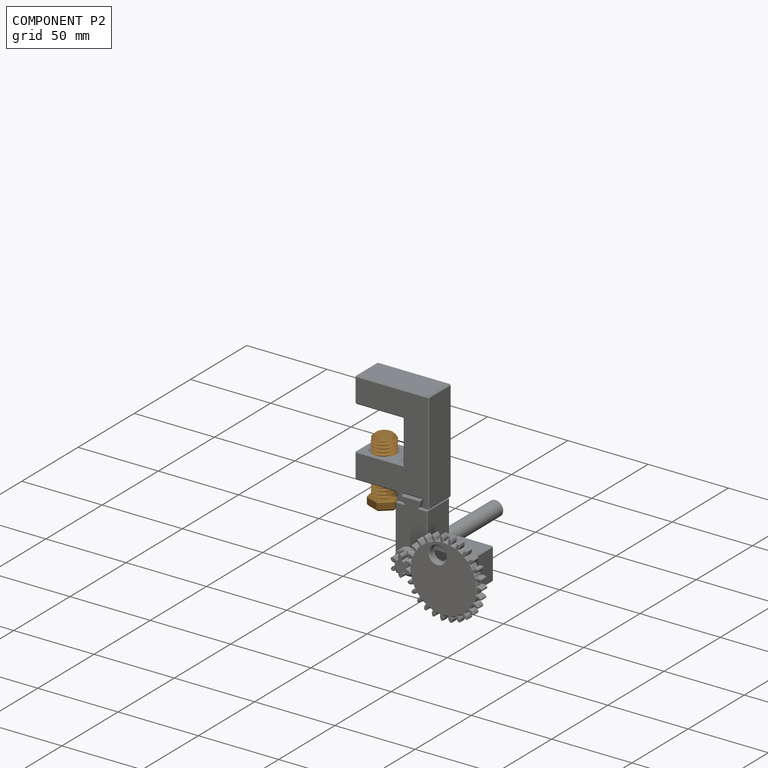
[diagram: component P2 — assembled]
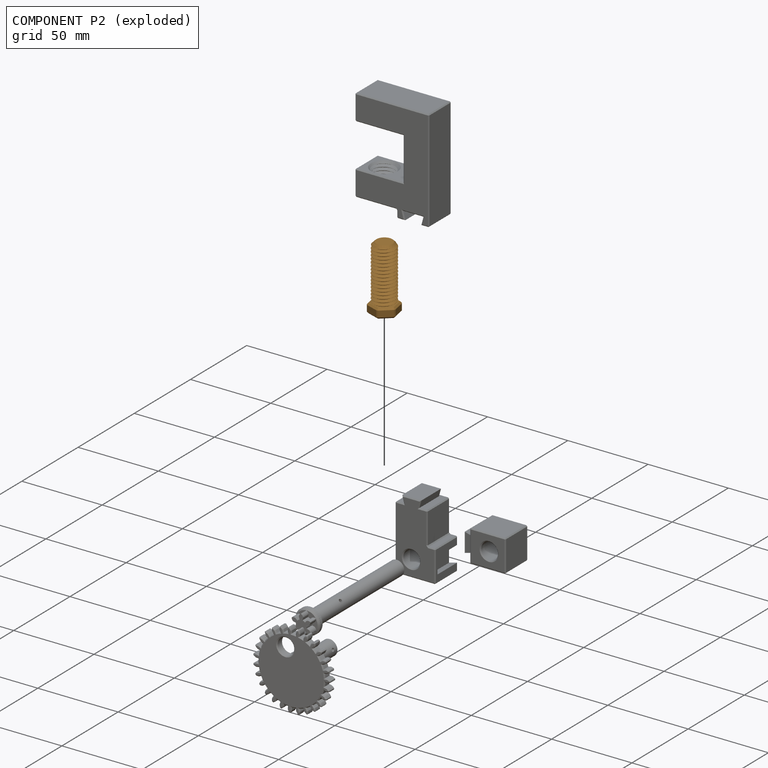
[diagram: component P2 — exploded]
COMPONENT P2 — geometry summary (no construction recipe available for this part):
  bounding box: 40.6 x 17.9 x 16.2 mm
  B-rep topology: 1 solid, 44 faces, 172 edges
  volume: 5640 mm^3 (48% of its bounding box)
Held by: CYLINDRICAL mate "Set Screw Mate" to P1.
